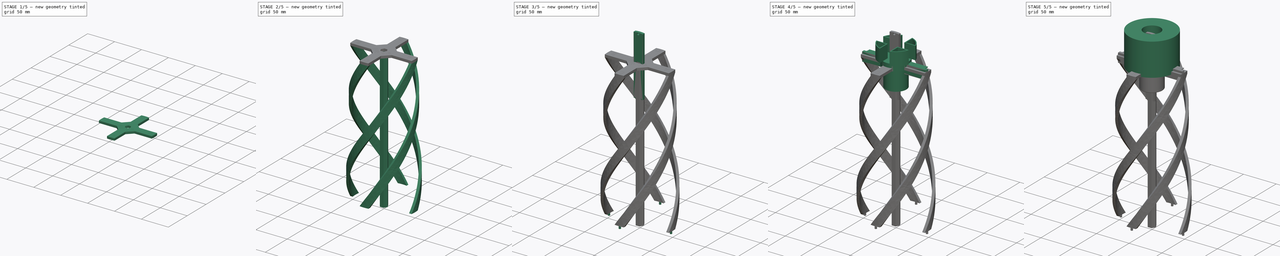
[diagram: build sequence overview — one tinted view per stage of 5, left to right]
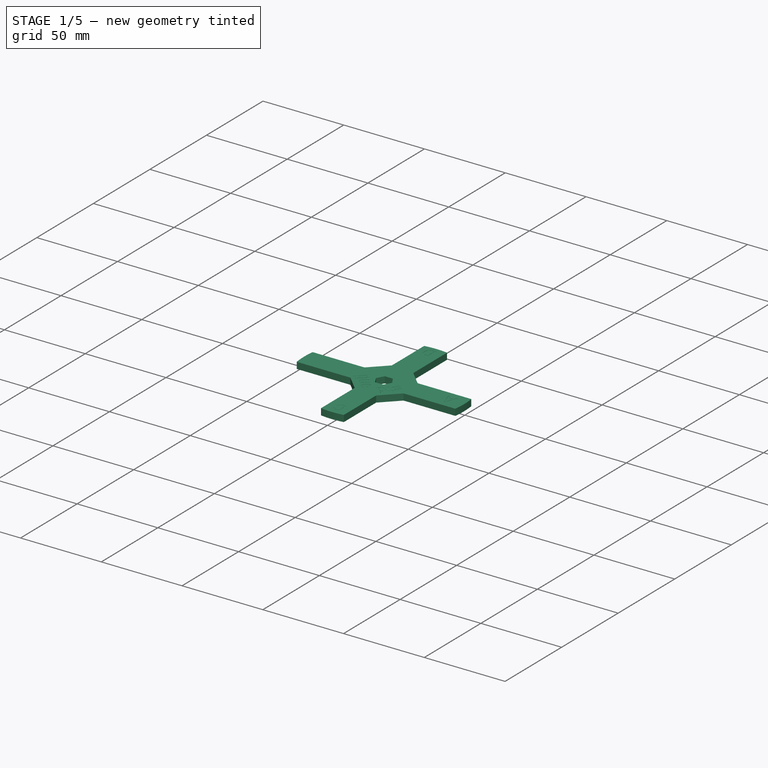
[diagram: stage 1 of 5 — iso view after this stage's code; geometry added in this stage tinted green]
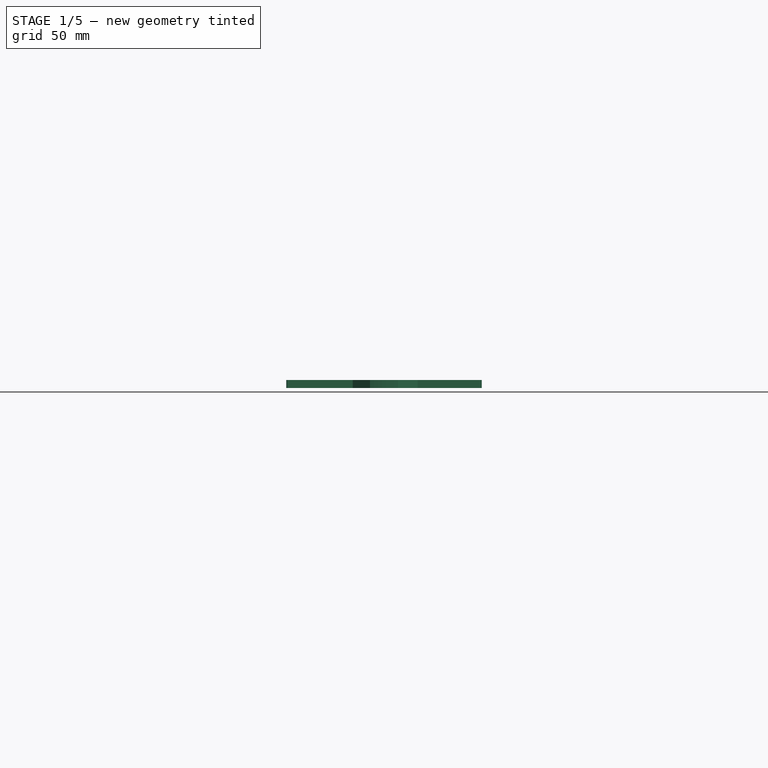
[diagram: stage 1 of 5 — front view after this stage's code; geometry added in this stage tinted green]
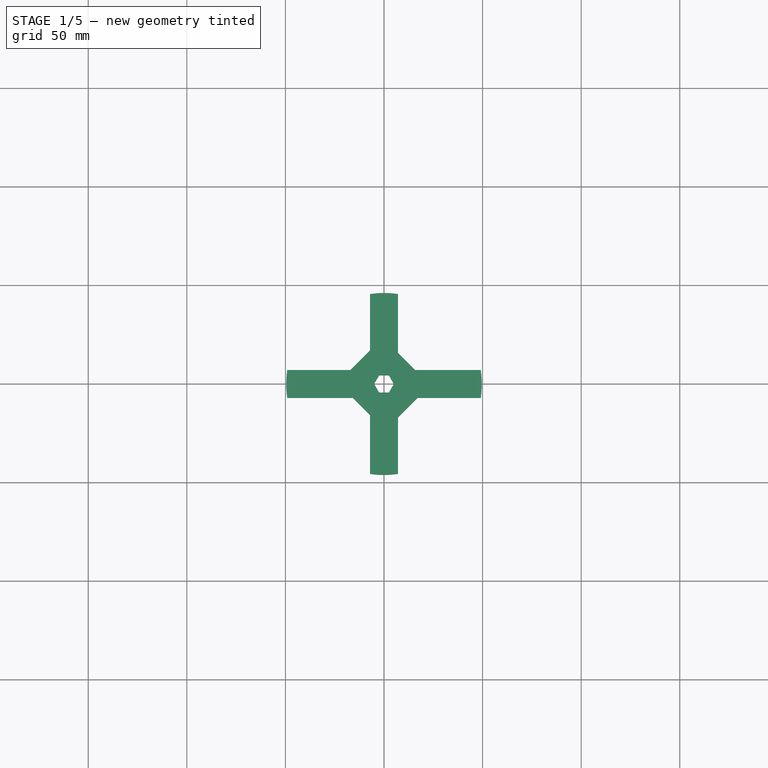
[diagram: stage 1 of 5 — top view after this stage's code; geometry added in this stage tinted green]
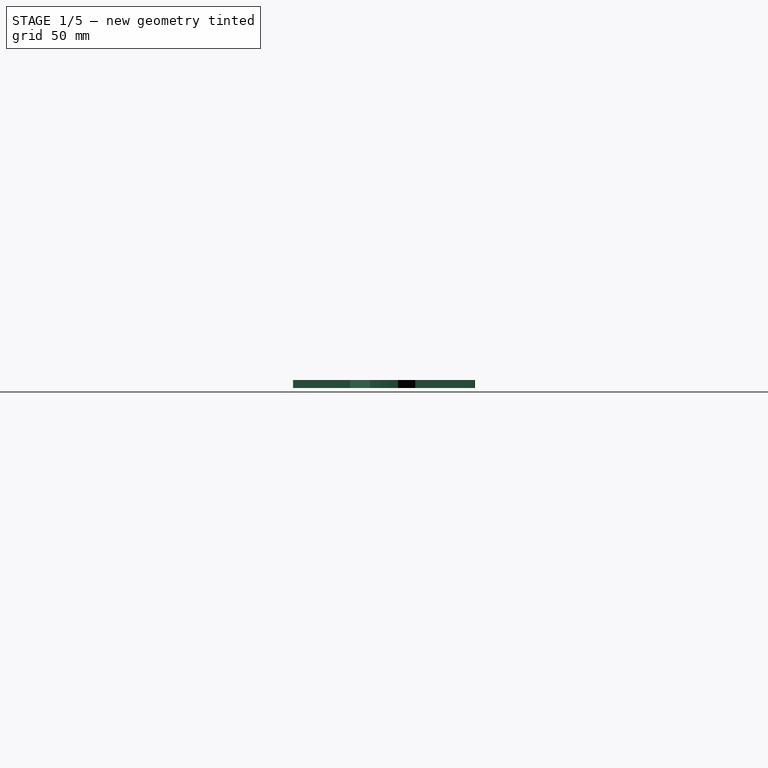
[diagram: stage 1 of 5 — right view after this stage's code; geometry added in this stage tinted green]
FCSTD DOCUMENT  (FreeCAD 0.21R33771 (Git))
Label: QfhAntenna
License: All rights reserved
LicenseURL: http://en.wikipedia.org/wiki/All_rights_reserved
objects: Sketcher::SketchObject×26, PartDesign::Pad×19, PartDesign::Pocket×11, Part::Part2DObjectPython×8, PartDesign::Body×5, PartDesign::CoordinateSystem×4, PartDesign::AdditiveHelix×4, PartDesign::Fillet×3, PartDesign::Chamfer×3, Spreadsheet::Sheet×2, App::DocumentObjectGroup×2, PartDesign::PolarPattern×1
note: 124 computed .brp shape members not serialized (recipe doc carries the construction recipe); baked Part::Feature solids carry a one-line shape summary decoded from their .brp

FEATURE [PartDesign::Body] Body008  label="Fork"
  Group = -> [Sketch014,Sketch015,Pad010,Pad011,PolarPattern,Sketch017,Fillet,LCS_7,Pad020,Chamfer,Fillet001,Chamfer001,Sketch036,Pocket004]
  Origin = -> Origin008
  Placement = pos=(0,-98.4,2.2e-14) rot=(-1,0,0;1.5708rad)
  Tip = -> Pocket004
FEATURE [App::DocumentObjectGroup] Group002  label="Support"
  Group = -> [Body008,Spreadsheet001,Body010]
FEATURE [PartDesign::CoordinateSystem] LCS_2
  AttacherType = Attacher::AttachEngine3D
FEATURE [Sketcher::SketchObject] Sketch035
  FullyConstrained = true
  MapMode = 5
  Support = -> [XY_Plane003]
  expr: Constraints[38] = Spreadsheet.D1Large
  expr: Constraints[40] = Spreadsheet.D2Small
  expr: Constraints[47] = 5
  expr: Constraints[48] = Spreadsheet.widthFoil * sqrt(2)
  expr: Constraints[49] = Spreadsheet.widthFoil * sqrt(2)
  expr: Constraints[82] = Spreadsheet.D2Small - Spreadsheet.helixThickness
  expr: Constraints[83] = Spreadsheet.D1Large - Spreadsheet.helixThickness
  expr: Constraints[85] = Spreadsheet.widthFoil / 2
  expr: Constraints[86] = Spreadsheet.widthFoil / 2
  expr: Constraints[87] = Spreadsheet.widthFoil * sqrt(2)
  expr: Constraints[88] = Spreadsheet.D2Small / 2
  expr: Constraints[89] = Spreadsheet.D1Large / 2
  sketch-geometry (43):
    g0: LineSegment StartX=2.5 StartY=-4.33013 StartZ=0 EndX=5 EndY=-7e-16 EndZ=0
    g1: LineSegment StartX=5 StartY=-7e-16 StartZ=0 EndX=2.5 EndY=4.33013 EndZ=0
    g2: LineSegment StartX=2.5 StartY=4.33013 StartZ=0 EndX=-2.5 EndY=4.33013 EndZ=0
    g3: LineSegment StartX=-2.5 StartY=4.33013 StartZ=0 EndX=-5 EndY=-2e-16 EndZ=0
    g4: LineSegment StartX=-5 StartY=-2e-16 StartZ=0 EndX=-2.5 EndY=-4.33013 EndZ=0
    g5: LineSegment StartX=-2.5 StartY=-4.33013 StartZ=0 EndX=2.5 EndY=-4.33013 EndZ=0
    g6: Circle CenterX=0 CenterY=0 CenterZ=0 NormalX=0 NormalY=0 NormalZ=1 AngleXU=0 Radius=5
    g7: ArcOfCircle CenterX=2.1e-15 CenterY=0 CenterZ=0 NormalX=0 NormalY=0 NormalZ=1 AngleXU=0 Radius=49.6 StartAngle=2.99854 EndAngle=3.28464
    g8: ArcOfCircle CenterX=0 CenterY=0 CenterZ=0 NormalX=0 NormalY=0 NormalZ=1 AngleXU=0 Radius=49.6 StartAngle=6.14014 EndAngle=6.42623
    g9: ArcOfCircle CenterX=0 CenterY=0 CenterZ=0 NormalX=0 NormalY=0 NormalZ=1 AngleXU=0 Radius=46.15 StartAngle=1.41697 EndAngle=1.72462
    g10: ArcOfCircle CenterX=0 CenterY=0 CenterZ=0 NormalX=0 NormalY=0 NormalZ=1 AngleXU=0 Radius=46.15 StartAngle=4.55856 EndAngle=4.86622
    g11: LineSegment StartX=-7.07102 StartY=45.6051 StartZ=0 EndX=-7.07102 EndY=7.07107 EndZ=0
    g12: LineSegment StartX=-49.0934 StartY=7.07107 StartZ=0 EndX=-7.07102 EndY=7.07107 EndZ=0
    g13: LineSegment StartX=7.07112 StartY=45.6051 StartZ=0 EndX=7.07112 EndY=7.07107 EndZ=0
    g14: LineSegment StartX=49.0934 StartY=7.07107 StartZ=0 EndX=7.07112 EndY=7.07107 EndZ=0
    g15: LineSegment StartX=-49.0934 StartY=-7.07107 StartZ=0 EndX=-7.07102 EndY=-7.07107 EndZ=0
    g16: LineSegment StartX=-7.07102 StartY=-7.07107 StartZ=0 EndX=-7.07102 EndY=-45.6051 EndZ=0
    g17: LineSegment StartX=7.07112 StartY=-45.6051 StartZ=0 EndX=7.07112 EndY=-7.07107 EndZ=0
    g18: LineSegment StartX=7.07112 StartY=-7.07107 StartZ=0 EndX=49.0934 EndY=-7.07107 EndZ=0
    g19: ArcOfCircle CenterX=-47.6 CenterY=2.5 CenterZ=0 NormalX=0 NormalY=0 NormalZ=1 AngleXU=0 Radius=1 StartAngle=1e-16 EndAngle=3.14159
    g20: ArcOfCircle CenterX=-47.6 CenterY=-2.5 CenterZ=0 NormalX=0 NormalY=0 NormalZ=1 AngleXU=0 Radius=1 StartAngle=3.14159 EndAngle=6.28319
    g21: LineSegment StartX=-48.6 StartY=2.5 StartZ=0 EndX=-48.6 EndY=-2.5 EndZ=0
    g22: LineSegment StartX=-46.6 StartY=-2.5 StartZ=0 EndX=-46.6 EndY=2.5 EndZ=0
    g23: ArcOfCircle CenterX=47.6 CenterY=2.5 CenterZ=0 NormalX=0 NormalY=0 NormalZ=1 AngleXU=0 Radius=1 StartAngle=1e-16 EndAngle=3.14159
    g24: ArcOfCircle CenterX=47.6 CenterY=-2.5 CenterZ=0 NormalX=0 NormalY=0 NormalZ=1 AngleXU=0 Radius=1 StartAngle=3.14159 EndAngle=6.28319
    g25: LineSegment StartX=46.6 StartY=2.5 StartZ=0 EndX=46.6 EndY=-2.5 EndZ=0
    g26: LineSegment StartX=48.6 StartY=-2.5 StartZ=0 EndX=48.6 EndY=2.5 EndZ=0
    g27: ArcOfCircle CenterX=-2.5 CenterY=-44.15 CenterZ=0 NormalX=0 NormalY=0 NormalZ=1 AngleXU=0 Radius=1 StartAngle=1.5708 EndAngle=4.71239
    g28: ArcOfCircle CenterX=2.5 CenterY=-44.15 CenterZ=0 NormalX=0 NormalY=0 NormalZ=1 AngleXU=0 Radius=1 StartAngle=4.71239 EndAngle=7.85398
    g29: LineSegment StartX=-2.5 StartY=-45.15 StartZ=0 EndX=2.5 EndY=-45.15 EndZ=0
    g30: LineSegment StartX=2.5 StartY=-43.15 StartZ=0 EndX=-2.5 EndY=-43.15 EndZ=0
    g31: ArcOfCircle CenterX=-2.5 CenterY=44.15 CenterZ=0 NormalX=0 NormalY=0 NormalZ=1 AngleXU=0 Radius=1 StartAngle=1.5708 EndAngle=4.71239
    g32: ArcOfCircle CenterX=2.5 CenterY=44.15 CenterZ=0 NormalX=0 NormalY=0 NormalZ=1 AngleXU=0 Radius=1 StartAngle=4.71239 EndAngle=7.85398
    g33: LineSegment StartX=-2.5 StartY=43.15 StartZ=0 EndX=2.5 EndY=43.15 EndZ=0
    g34: LineSegment StartX=2.5 StartY=45.15 StartZ=0 EndX=-2.5 EndY=45.15 EndZ=0
    g35: LineSegment StartX=-15.8392 StartY=-7.07107 StartZ=0 EndX=-7.07102 EndY=-15.8392 EndZ=0
    g36: LineSegment StartX=7.07112 StartY=15.8391 StartZ=0 EndX=15.8392 EndY=7.07107 EndZ=0
    g37: LineSegment StartX=2.1e-15 StartY=0 StartZ=0 EndX=11.4551 EndY=11.4551 EndZ=0
    g38: LineSegment StartX=2.1e-15 StartY=0 StartZ=0 EndX=-11.4551 EndY=-11.4551 EndZ=0
    g39: LineSegment StartX=-49.0934 StartY=-7.07107 StartZ=0 EndX=-15.8392 EndY=-7.07107 EndZ=0
    g40: LineSegment StartX=7.07112 StartY=45.6051 StartZ=0 EndX=7.07112 EndY=15.8391 EndZ=0
    g41: LineSegment StartX=15.8392 StartY=7.07107 StartZ=0 EndX=49.0934 EndY=7.07107 EndZ=0
    g42: LineSegment StartX=-7.07102 StartY=-15.8392 StartZ=0 EndX=-7.07102 EndY=-45.6051 EndZ=0
  constraints (108):
    c: Coincident(g0,g1)
    c: Coincident(g1,g2)
    c: Coincident(g2,g3)
    c: Coincident(g3,g4)
    c: Coincident(g4,g5)
    c: Coincident(g5,g0)
    c: Equal(g0, g1-g5) x5
    c: PointOnObject(g0,g6)
    c: PointOnObject(g1,g6)
    c: PointOnObject(g2,g6)
    c: PointOnObject(g3,g6)
    c: PointOnObject(g4,g6)
    c: PointOnObject(g5,g6)
    c: Coincident(g6,g-1)
    c: PointOnObject(g7,g-1)
    c: Coincident(g8,g6)
    c: Coincident(g9,g8)
    c: Coincident(g10,g8)
    c: Coincident(g11,g9)
    c: Vertical(g11)
    c: Coincident(g12,g7)
    c: Coincident(g12,g11)
    c: Horizontal(g12)
    c: Coincident(g13,g9)
    c: Vertical(g13)
    c: Coincident(g14,g8)
    c: Coincident(g14,g13)
    c: Coincident(g15,g7)
    c: Coincident(g16,g15)
    c: Coincident(g16,g10)
    c: Coincident(g17,g10)
    c: Vertical(g17)
    c: Coincident(g18,g17)
    c: Coincident(g18,g8)
    c: Distance(g7,g8) = 99.2
    c: Symmetric(g7,g8,g-2)
    c: Distance(g9,g10) = 92.3
    c: Perpendicular(g16,g15)
    c: Perpendicular(g18,g17)
    c: Perpendicular(g13,g14)
    c: Horizontal(g15,g17)
    c: Symmetric(g11,g15,g-1)
    c: Horizontal(g2)
    c: Radius(g6) = 5
    c: DistanceY(g7,g7) = 14.1421
    c: DistanceX(g9,g9) = 14.1421
    c: Symmetric(g9,g10,g-1)
    c: Tangent(g19,g21) = -1.5708
    c: Tangent(g21,g20) = -1.5708
    c: Tangent(g20,g22) = -1.5708
    c: Tangent(g22,g19) = -1.5708
    c: Tangent(g23,g25) = -1.5708
    c: Tangent(g25,g24) = -1.5708
    c: Tangent(g24,g26) = -1.5708
    c: Tangent(g26,g23) = -1.5708
    c: Equal(g23,g24)
    c: Tangent(g27,g29) = -1.5708
    c: Tangent(g29,g28) = -1.5708
    c: Tangent(g28,g30) = -1.5708
    c: Tangent(g30,g27) = -1.5708
    c: Equal(g27,g28)
    c: Vertical(g24,g23)
    c: Symmetric(g28,g27,g-2)
    c: Tangent(g31,g33) = -1.5708
    c: Tangent(g33,g32) = -1.5708
    c: Tangent(g32,g34) = -1.5708
    c: Tangent(g34,g31) = -1.5708
    c: Equal(g31,g32)
    c: Horizontal(g33)
    c: Vertical(g31,g27)
    c: Horizontal(g20,g24)
    c: Symmetric(g19,g20,g-1)
    c: Equal(g20,g27)
    c: Equal(g20,g31)
    c: Equal(g20,g24)
    c: Radius(g20) = 1
    c: Symmetric(g19,g23,g-2)
    c: Symmetric(g28,g32,g-1)
    c: DistanceY(g28,g32) = 88.3
    c: DistanceX(g19,g23) = 95.2
    c: Equal(g19,g32)
    c: DistanceY(g24,g23) = 5
    c: DistanceX(g27,g28) = 5
    c: DistanceX(g10,g10) = 14.1421
    c: Radius(g10) = 46.15
    c: Radius(g7) = 49.6
    c: PointOnObject(g35,g15)
    c: PointOnObject(g35,g16)
    c: PointOnObject(g36,g13)
    c: PointOnObject(g36,g14)
    c: Parallel(g35,g36)
    c: Angle(g35) = -0.785398
    c: Coincident(g37,g7)
    c: PointOnObject(g37,g36)
    c: Coincident(g38,g7)
    c: PointOnObject(g38,g35)
    c: Perpendicular(g36,g37)
    c: Perpendicular(g35,g38)
    c: Distance(g37) = 16.2
    c: Distance(g38) = 16.2
    c: Coincident(g39,g7)
    c: Coincident(g39,g35)
    c: Coincident(g40,g9)
    c: Coincident(g40,g36)
    c: Coincident(g41,g36)
    c: Coincident(g41,g8)
    c: Coincident(g42,g35)
    c: Coincident(g42,g10)
FEATURE [PartDesign::Pad] Pad027
  Direction = (0,0,1)
  Length = 4
  Length2 = 10
  Profile = -> Sketch035
  ReferenceAxis = -> Sketch035 [N_Axis]
  Type = 0
  expr: Length = Spreadsheet.helixThickness
FEATURE [PartDesign::Body] Body006  label="SmallBase"
  Group = -> [Sketch005,LCS_4,Pad034,Sketch045,Pad035]
  Origin = -> Origin006
  Placement = pos=(-0.764251,7.2,0) rot=(0,0,1;3.14159rad)
  Tip = -> Pad035
  expr: .Placement.Base.y = Spreadsheet.heightSmall
FEATURE [PartDesign::Chamfer] Chamfer004
  Angle = 45
  Base = -> Pad027 [Edge5,Edge26]
  BaseFeature = -> Pad027
  ChamferType = 0
  FlipDirection = false
  Size = 10
  Size2 = 1
  SupportTransform = false
  UseAllEdges = false
FEATURE [Part::Part2DObjectPython] ShapeString  label="A"  # Draft 2D object (typed FeaturePython)
  FontFile = <userpath>/Library/Fonts/DINMittelschriftStd.otf
  MakeFace = true
  Placement = pos=(43.5316,3.39223,4) rot=(0,0,1;3.11792rad)
  Size = 4
  String = A
  Tracking = 0
  expr: .Placement.Base.z = Spreadsheet.helixThickness
FEATURE [Part::Part2DObjectPython] ShapeString001  label="B"  # Draft 2D object (typed FeaturePython)
  FontFile = <userpath>/Library/Fonts/DINMittelschriftStd.otf
  MakeFace = true
  Placement = pos=(-36.8456,3.64199,4) rot=(0,0,1;3.11792rad)
  Size = 4
  String = B
  Tracking = 0
  expr: .Placement.Base.z = Spreadsheet.helixThickness
FEATURE [Part::Part2DObjectPython] ShapeString002  label="C"  # Draft 2D object (typed FeaturePython)
  FontFile = <userpath>/Library/Fonts/DINMittelschriftStd.otf
  MakeFace = true
  Placement = pos=(3.40399,-36.3492,4) rot=(0,0,1;3.11792rad)
  Size = 4
  String = C
  Tracking = 0
  expr: .Placement.Base.z = Spreadsheet.helixThickness
FEATURE [Part::Part2DObjectPython] ShapeString003  label="D"  # Draft 2D object (typed FeaturePython)
  FontFile = <userpath>/Library/Fonts/DINMittelschriftStd.otf
  MakeFace = true
  Placement = pos=(3.04927,43.4959,4) rot=(0,0,1;3.11792rad)
  Size = 4
  String = D
  Tracking = 0
  expr: .Placement.Base.z = Spreadsheet.helixThickness
FEATURE [Part::Part2DObjectPython] ShapeString004  label="Standard"  # Draft 2D object (typed FeaturePython)
  FontFile = <userpath>/Library/Fonts/DINMittelschriftStd.otf
  MakeFace = true
  Placement = pos=(10.8785,-0.540177,4) rot=(0,0,1;3.92265rad)
  Size = 4
  String = std
  Tracking = 0
  expr: .Placement.Base.z = Spreadsheet.helixThickness
FEATURE [Part::Part2DObjectPython] ShapeString005  label="Anti"  # Draft 2D object (typed FeaturePython)
  FontFile = <userpath>/Library/Fonts/DINMittelschriftStd.otf
  MakeFace = true
  Placement = pos=(-0.241636,-10.8416,4) rot=(0,0,1;2.30983rad)
  Size = 4
  String = anti
  Tracking = 0
  expr: .Placement.Base.z = Spreadsheet.helixThickness
FEATURE [Part::Part2DObjectPython] ShapeString007  label="Standard001"  # Draft 2D object (typed FeaturePython)
  FontFile = <userpath>/Library/Fonts/DINMittelschriftStd.otf
  MakeFace = true
  Placement = pos=(10.8785,-0.540177,4) rot=(0,0,1;3.92265rad)
  Size = 4
  String = std
  Tracking = 0
  expr: .Placement.Base.z = Spreadsheet.helixThickness
FEATURE [PartDesign::Pocket] Pocket010
  BaseFeature = -> Chamfer004
  Direction = (0,0,-1)
  Length = 0.1
  Length2 = 5
  Profile = -> ShapeString007
  ReferenceAxis = -> ShapeString007 [N_Axis]
  Type = 0
FEATURE [PartDesign::Pocket] Pocket009
  BaseFeature = -> Pocket010
  Direction = (0,0,-1)
  Length = 0.1
  Length2 = 5
  Profile = -> ShapeString005
  ReferenceAxis = -> ShapeString005 [N_Axis]
  Type = 0
FEATURE [PartDesign::Pocket] Pocket008
  BaseFeature = -> Pocket009
  Direction = (0,0,-1)
  Length = 0.1
  Length2 = 5
  Profile = -> ShapeString
  ReferenceAxis = -> ShapeString [N_Axis]
  Type = 0
FEATURE [PartDesign::Pocket] Pocket007
  BaseFeature = -> Pocket008
  Direction = (0,0,-1)
  Length = 0.1
  Length2 = 5
  Profile = -> ShapeString004
  ReferenceAxis = -> ShapeString004 [N_Axis]
  Type = 0
FEATURE [PartDesign::Pocket] Pocket006
  BaseFeature = -> Pocket007
  Direction = (0,0,-1)
  Length = 0.1
  Length2 = 5
  Profile = -> ShapeString002
  ReferenceAxis = -> ShapeString002 [N_Axis]
  Type = 0
FEATURE [PartDesign::Pocket] Pocket
  BaseFeature = -> Pocket006
  Direction = (0,0,-1)
  Length = 0.1
  Length2 = 5
  Profile = -> ShapeString003
  ReferenceAxis = -> ShapeString003 [N_Axis]
  Type = 0
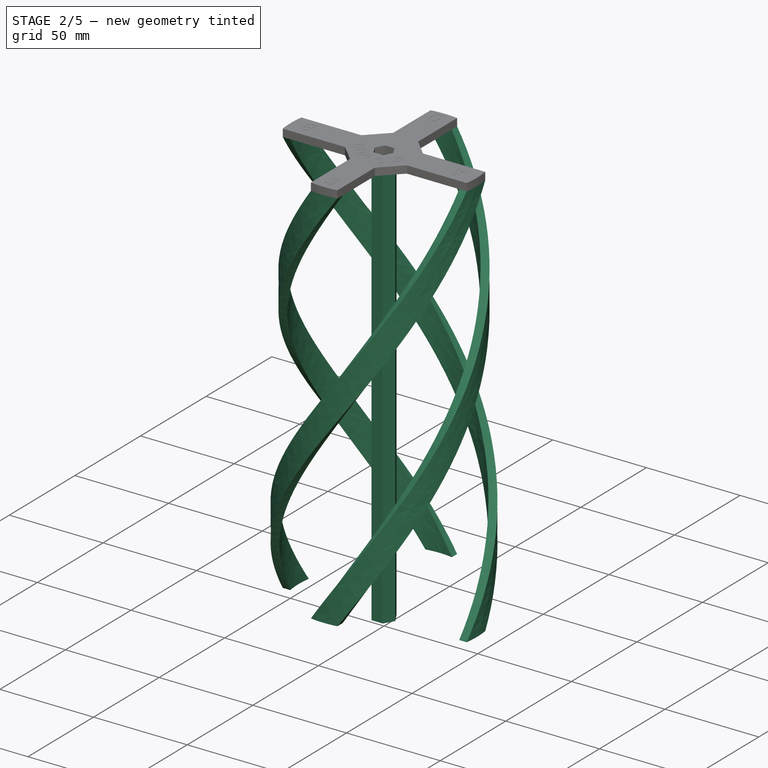
[diagram: stage 2 of 5 — iso view after this stage's code; geometry added in this stage tinted green]
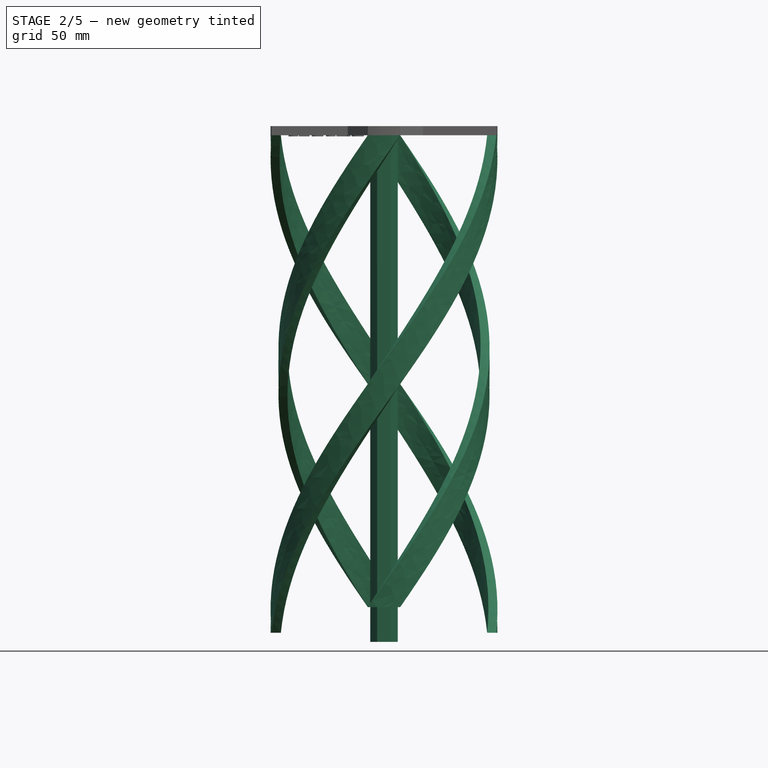
[diagram: stage 2 of 5 — front view after this stage's code; geometry added in this stage tinted green]
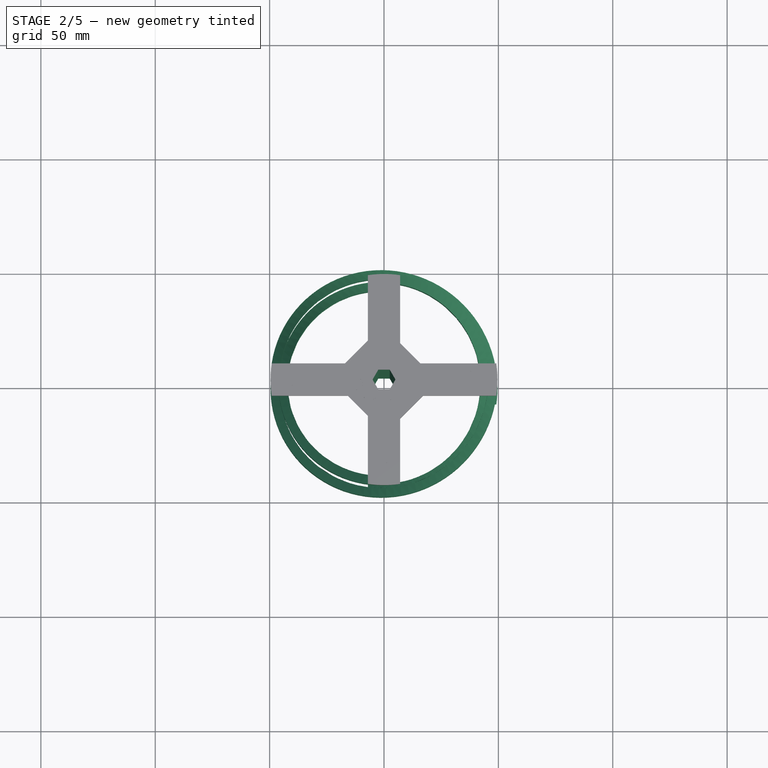
[diagram: stage 2 of 5 — top view after this stage's code; geometry added in this stage tinted green]
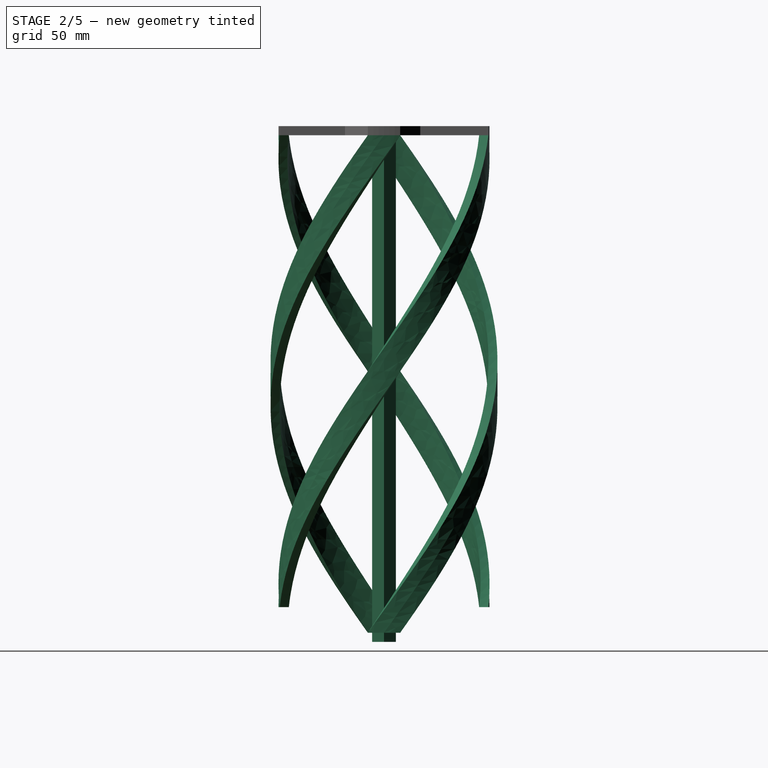
[diagram: stage 2 of 5 — right view after this stage's code; geometry added in this stage tinted green]
FEATURE [Part::Part2DObjectPython] ShapeString008  label="SA0PEJ"  # Draft 2D object (typed FeaturePython)
  FontFile = <userpath>/Library/Fonts/DINMittelschriftStd.otf
  MakeFace = true
  Placement = pos=(-8.68221,-4.04907,0) rot=(0,1,0;3.14159rad)
  Size = 4
  String = SA0PEJ
  Tracking = 0
FEATURE [PartDesign::Pad] Pad
  BaseFeature = -> Pocket
  Direction = (0,0,-1)
  Length = 0.5
  Length2 = 10
  Profile = -> ShapeString008
  ReferenceAxis = -> ShapeString008 [N_Axis]
  Type = 0
FEATURE [PartDesign::Pocket] Pocket005
  BaseFeature = -> Pad
  Direction = (0,0,-1)
  Length = 0.1
  Length2 = 5
  Profile = -> ShapeString001
  ReferenceAxis = -> ShapeString001 [N_Axis]
  Type = 0
FEATURE [PartDesign::Fillet] Fillet002
  Base = -> Pocket005
  BaseFeature = -> Pocket005
  Radius = 1
  SupportTransform = false
  UseAllEdges = false
FEATURE [PartDesign::AdditiveHelix] AdditiveHelix003  label="SmallHelixB"
  Angle = 0
  Axis = (1e-16,1e-16,1)
  Base = (0,0,0)
  BaseFeature = -> Fillet002
  Growth = 0
  HasBeenEdited = true
  Height = 206.3
  LeftHanded = false
  Mode = 2
  Outside = false
  Pitch = 412.6
  Profile = -> Sketch038
  ReferenceAxis = -> Z_Axis003
  Reversed = true
  Turns = 0.5
  expr: Height = Spreadsheet.H2Small - 2 * Spreadsheet.helixThickness
FEATURE [PartDesign::AdditiveHelix] AdditiveHelix004  label="LargeHelixB"
  Angle = 0
  Axis = (1e-16,1e-16,1)
  Base = (0,0,0)
  BaseFeature = -> AdditiveHelix003
  Growth = 0
  HasBeenEdited = true
  Height = 217.5
  LeftHanded = false
  Mode = 2
  Outside = false
  Pitch = 435
  Profile = -> Sketch039
  ReferenceAxis = -> Z_Axis003
  Reversed = true
  Turns = 0.5
  expr: Height = Spreadsheet.H1Large - 2 * Spreadsheet.helixThickness
FEATURE [PartDesign::Pad] Pad032
  BaseFeature = -> AdditiveHelix004
  Direction = (0,0,-1)
  Length = 221.5
  Length2 = 10
  Profile = -> Sketch044
  ReferenceAxis = -> Sketch044 [N_Axis]
  Type = 0
  expr: Length = Spreadsheet.H1Large - Spreadsheet.helixThickness
FEATURE [Sketcher::SketchObject] Sketch
  ExternalGeometry = -> [Pad032]
  FullyConstrained = true
  MapMode = 5
  Placement = pos=(0,0,0) rot=(1,0,0;3.14159rad)
  Support = -> [Pad032]
  expr: Constraints[5] = Spreadsheet.helixThickness
  sketch-geometry (4):
    g0: ArcOfCircle CenterX=0 CenterY=0 CenterZ=0 NormalX=0 NormalY=0 NormalZ=1 AngleXU=0 Radius=49.6 StartAngle=6.14014 EndAngle=6.42623
    g1: ArcOfCircle CenterX=0 CenterY=0 CenterZ=0 NormalX=0 NormalY=0 NormalZ=1 AngleXU=0 Radius=45.6444 StartAngle=6.12764 EndAngle=6.43873
    g2: LineSegment StartX=45.0934 StartY=7.07107 StartZ=0 EndX=49.0934 EndY=7.07107 EndZ=0
    g3: LineSegment StartX=45.0934 StartY=-7.07107 StartZ=0 EndX=49.0934 EndY=-7.07107 EndZ=0
  constraints (12):
    c: Coincident(g0,g-3)
    c: Coincident(g0,g-3)
    c: Coincident(g1,g0)
    c: Horizontal(g1,g0)
    c: Horizontal(g1,g0)
    c: DistanceX(g1,g0) = 4
    c: Coincident(g2,g1)
    c: Coincident(g2,g0)
    c: Coincident(g3,g1)
    c: Horizontal(g3)
    c: Horizontal(g1,g-3)
    c: Vertical(g3,g0)
FEATURE [PartDesign::AdditiveHelix] AdditiveHelix  label="LargeHelixA"
  Angle = 0
  Axis = (1e-16,1e-16,1)
  Base = (0,0,0)
  BaseFeature = -> Pad032
  Growth = 0
  HasBeenEdited = true
  Height = 217.5
  LeftHanded = false
  Mode = 2
  Outside = false
  Pitch = 435
  Profile = -> Sketch
  ReferenceAxis = -> Z_Axis003
  Reversed = true
  Turns = 0.5
  expr: Height = Spreadsheet.H1Large - 2 * Spreadsheet.helixThickness
FEATURE [Sketcher::SketchObject] Sketch046
  ExternalGeometry = -> [AdditiveHelix]
  FullyConstrained = true
  MapMode = 5
  Placement = pos=(0,0,0) rot=(1,0,0;3.14159rad)
  Support = -> [AdditiveHelix]
  expr: Constraints[9] = Spreadsheet.helixThickness
  sketch-geometry (4):
    g0: ArcOfCircle CenterX=0 CenterY=0 CenterZ=0 NormalX=0 NormalY=0 NormalZ=1 AngleXU=0 Radius=46.15 StartAngle=4.55856 EndAngle=4.86622
    g1: ArcOfCircle CenterX=0 CenterY=0 CenterZ=0 NormalX=0 NormalY=0 NormalZ=1 AngleXU=0 Radius=42.2017 StartAngle=4.54404 EndAngle=4.88074
    g2: LineSegment StartX=-7.07102 StartY=-41.6051 StartZ=0 EndX=-7.07102 EndY=-45.6051 EndZ=0
    g3: LineSegment StartX=7.07112 StartY=-41.6051 StartZ=0 EndX=7.07112 EndY=-45.6051 EndZ=0
  constraints (11):
    c: Coincident(g0,g-3)
    c: Coincident(g0,g-3)
    c: Coincident(g1,g0)
    c: Vertical(g0,g1)
    c: Vertical(g0,g1)
    c: Coincident(g2,g1)
    c: Coincident(g2,g0)
    c: Coincident(g3,g1)
    c: Coincident(g3,g0)
    c: DistanceY(g3,g3) = 4
    c: Vertical(g-3,g0)
FEATURE [PartDesign::AdditiveHelix] AdditiveHelix005  label="SmallHelixA"
  Angle = 0
  Axis = (1e-16,1e-16,1)
  Base = (0,0,0)
  BaseFeature = -> AdditiveHelix
  Growth = 0
  HasBeenEdited = true
  Height = 210.3
  LeftHanded = false
  Mode = 2
  Outside = false
  Pitch = 420.6
  Profile = -> Sketch046
  ReferenceAxis = -> Z_Axis003
  Reversed = true
  Turns = 0.5
  expr: Height = Spreadsheet.H2Small - 2 * Spreadsheet.helixThickness
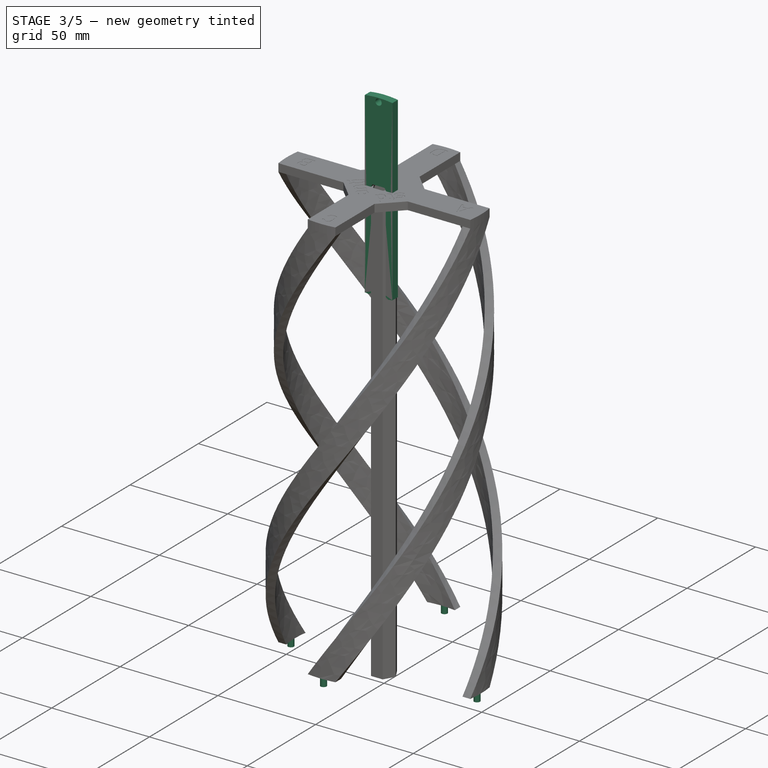
[diagram: stage 3 of 5 — iso view after this stage's code; geometry added in this stage tinted green]
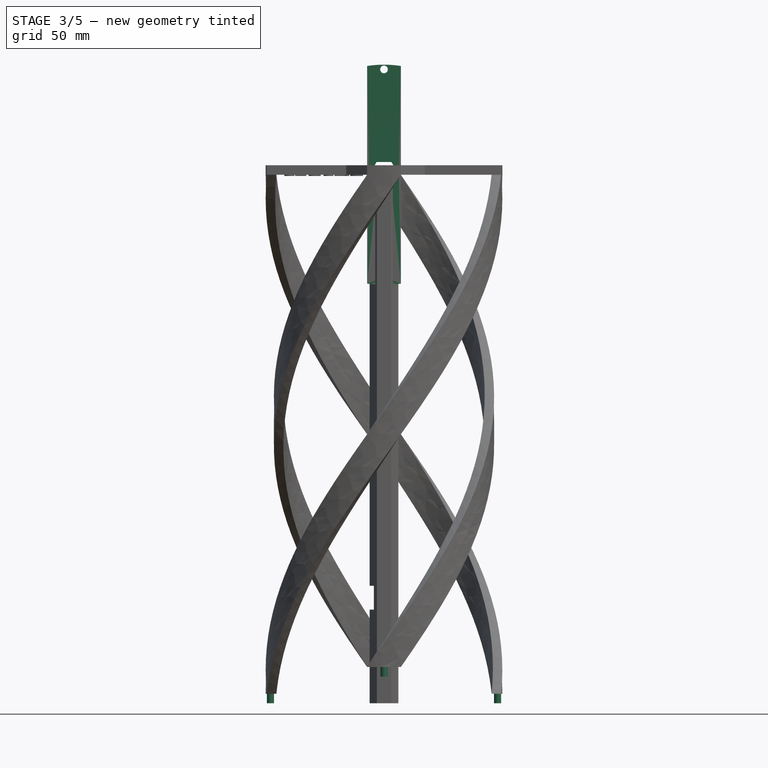
[diagram: stage 3 of 5 — front view after this stage's code; geometry added in this stage tinted green]
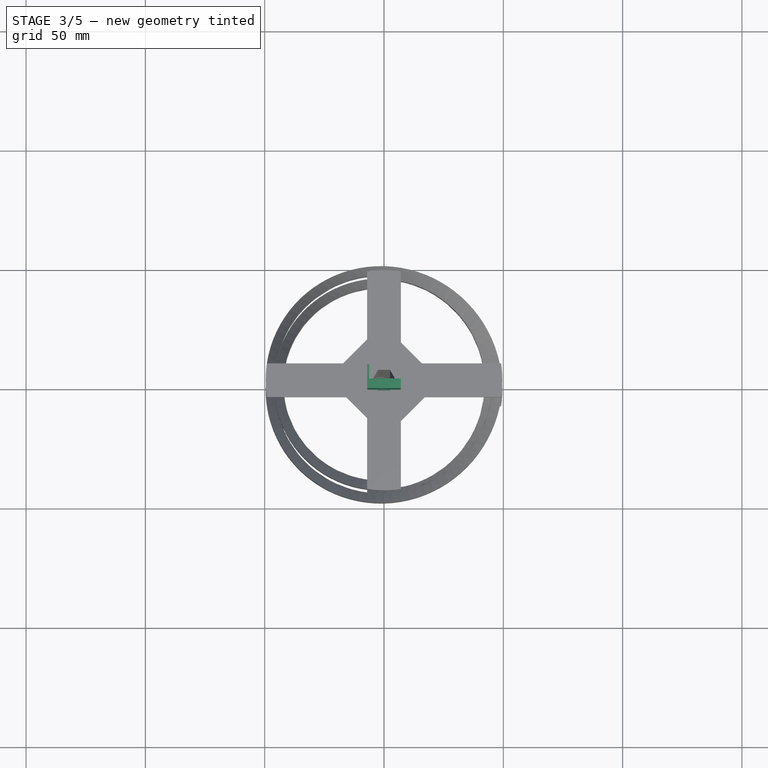
[diagram: stage 3 of 5 — top view after this stage's code; geometry added in this stage tinted green]
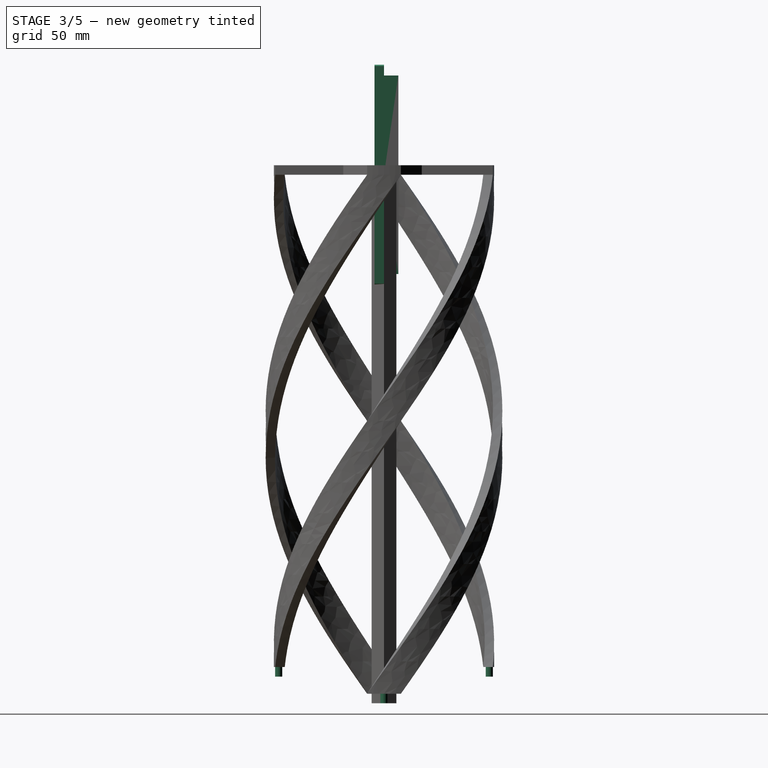
[diagram: stage 3 of 5 — right view after this stage's code; geometry added in this stage tinted green]
FEATURE [PartDesign::Body] Body002  label="LargeBase"
  Group = -> [Sketch003,Pad003,LCS_1,Sketch028,Sketch033,Pad026,Pad033]
  Origin = -> Origin002
  Placement = pos=(3e-15,-75.8,0) rot=(0,0,1;3.14159rad)
  Tip = -> Pad033
FEATURE [PartDesign::Pad] Pad034
  Direction = (0,-1,-2e-16)
  Length = 4
  Length2 = 10
  Placement = pos=(0,0,0) rot=(1,0,0;1.5708rad)
  Profile = -> Sketch005
  ReferenceAxis = -> Sketch005 [N_Axis]
  Type = 0
  expr: Length = Spreadsheet.helixThickness
FEATURE [Sketcher::SketchObject] Sketch045
  ExternalGeometry = -> [Pad034]
  FullyConstrained = true
  MapMode = 5
  Placement = pos=(0,0,0) rot=(-1,0,0;1.5708rad)
  Support = -> [Pad034]
  expr: Constraints[10] = Spreadsheet.helixThickness
  expr: Constraints[11] = Spreadsheet.helixThickness
  sketch-geometry (4):
    g0: LineSegment StartX=-7.07107 StartY=41.6051 StartZ=0 EndX=-6.2 EndY=41.6051 EndZ=0
    g1: LineSegment StartX=-6.2 StartY=41.6051 StartZ=0 EndX=-6.2 EndY=-41.6051 EndZ=0
    g2: LineSegment StartX=-6.2 StartY=-41.6051 StartZ=0 EndX=-7.07107 EndY=-41.6051 EndZ=0
    g3: LineSegment StartX=-7.07107 StartY=-41.6051 StartZ=0 EndX=-7.07107 EndY=41.6051 EndZ=0
  constraints (12):
    c: Coincident(g0,g1)
    c: Coincident(g1,g2)
    c: Coincident(g2,g3)
    c: Coincident(g3,g0)
    c: Horizontal(g0)
    c: Horizontal(g2)
    c: Vertical(g1)
    c: Vertical(g3)
    c: PointOnObject(g0,g-4)
    c: PointOnObject(g-3,g1)
    c: DistanceY(g0,g-4) = 4
    c: DistanceY(g-4,g2) = 4
FEATURE [PartDesign::Pad] Pad035
  BaseFeature = -> Pad034
  Direction = (0,1,2e-16)
  Length = 6
  Length2 = 10
  Placement = pos=(0,0,0) rot=(1,0,0;1.5708rad)
  Profile = -> Sketch045
  ReferenceAxis = -> Sketch045 [N_Axis]
  Type = 0
  expr: Length = Spreadsheet.widthFoil - Spreadsheet.helixThickness
FEATURE [Sketcher::SketchObject] Sketch041
  FullyConstrained = true
  MapMode = 5
  Placement = pos=(0,0,8.2e-15) rot=(0,0,1;0rad)
  Support = -> [AdditiveHelix005]
  expr: Constraints[1] = Spreadsheet.helixThickness - 1
  expr: Constraints[2] = Spreadsheet.D2Small / 2 - Spreadsheet.helixThickness / 2
  sketch-geometry (1):
    g0: Circle CenterX=0 CenterY=-44.15 CenterZ=0 NormalX=0 NormalY=0 NormalZ=1 AngleXU=0 Radius=1.5
  constraints (3):
    c: PointOnObject(g0,g-2)
    c: Diameter(g0) = 3
    c: DistanceY(g0,g-1) = 44.15
FEATURE [PartDesign::Pad] Pad029
  BaseFeature = -> AdditiveHelix005
  Direction = (0,0,1)
  Length = 4
  Length2 = 10
  Profile = -> Sketch041
  ReferenceAxis = -> Sketch041 [N_Axis]
  Type = 0
  expr: Length = Spreadsheet.helixThickness
FEATURE [Sketcher::SketchObject] Sketch047
  FullyConstrained = true
  MapMode = 5
  Placement = pos=(0,0,0) rot=(1,0,0;3.14159rad)
  Support = -> [AdditiveHelix005]
  expr: Constraints[1] = Spreadsheet.D1Large / 2 - Spreadsheet.helixThickness / 2
  expr: Constraints[2] = Spreadsheet.helixThickness - 1
  sketch-geometry (1):
    g0: Circle CenterX=-47.6 CenterY=0 CenterZ=0 NormalX=0 NormalY=0 NormalZ=1 AngleXU=0 Radius=1.5
  constraints (3):
    c: PointOnObject(g0,g-1)
    c: DistanceX(g0,g-1) = 47.6
    c: Diameter(g0) = 3
FEATURE [PartDesign::Pad] Pad036
  BaseFeature = -> Pad029
  Direction = (0,0,-1)
  Length = 4
  Length2 = 10
  Profile = -> Sketch047
  ReferenceAxis = -> Sketch047 [N_Axis]
  Type = 0
  expr: Length = Spreadsheet.helixThickness
FEATURE [Sketcher::SketchObject] Sketch048
  FullyConstrained = true
  MapMode = 5
  Placement = pos=(3.05499e-08,-3.05475e-08,-210.3) rot=(1,0,0;3.14159rad)
  Support = -> [Pad036]
  expr: Constraints[1] = Spreadsheet.D2Small / 2 - Spreadsheet.helixThickness / 2
  expr: Constraints[2] = Spreadsheet.helixThickness - 1
  sketch-geometry (1):
    g0: Circle CenterX=0 CenterY=44.15 CenterZ=0 NormalX=0 NormalY=0 NormalZ=1 AngleXU=0 Radius=1.5
  constraints (3):
    c: PointOnObject(g0,g-2)
    c: DistanceY(g-1,g0) = 44.15
    c: Diameter(g0) = 3
FEATURE [PartDesign::Pad] Pad037
  BaseFeature = -> Pad036
  Direction = (1.45268e-10,-1.45257e-10,-1)
  Length = 4
  Length2 = 10
  Profile = -> Sketch048
  ReferenceAxis = -> Sketch048 [N_Axis]
  Type = 0
  expr: Length = Spreadsheet.helixThickness
FEATURE [Sketcher::SketchObject] Sketch050
  FullyConstrained = true
  MapMode = 5
  Placement = pos=(-4.5,2.59808,0) rot=(-0.377964,0.654654,0.654654;3.86433rad)
  Support = -> [Pad032]
  sketch-geometry (4):
    g0: LineSegment StartX=-5 StartY=-182.25 StartZ=0 EndX=5 EndY=-182.25 EndZ=0
    g1: LineSegment StartX=5 StartY=-182.25 StartZ=0 EndX=5 EndY=-172.25 EndZ=0
    g2: LineSegment StartX=5 StartY=-172.25 StartZ=0 EndX=-5 EndY=-172.25 EndZ=0
    g3: LineSegment StartX=-5 StartY=-172.25 StartZ=0 EndX=-5 EndY=-182.25 EndZ=0
  constraints (11):
    c: Coincident(g0,g1)
    c: Coincident(g1,g2)
    c: Coincident(g2,g3)
    c: Coincident(g3,g0)
    c: Horizontal(g2)
    c: Vertical(g1)
    c: Vertical(g3)
    c: Equal(g0,g1)
    c: DistanceY(g1,g-1) = 172.25
    c: DistanceX(g0,g0) = 10
    c: Symmetric(g0,g0,g-2)
FEATURE [PartDesign::Pocket] Pocket011
  BaseFeature = -> Pad037
  Direction = (0.866025,-0.5,-2e-16)
  Length = 3
  Length2 = 5
  Profile = -> Sketch050
  ReferenceAxis = -> Sketch050 [N_Axis]
  Type = 0
FEATURE [Sketcher::SketchObject] Sketch051
  FullyConstrained = true
  MapMode = 5
  Placement = pos=(-2.93935e-08,2.93912e-08,-206.3) rot=(1,0,0;3.14159rad)
  Support = -> [Pad037]
  expr: Constraints[1] = Spreadsheet.D2Small / 2 - Spreadsheet.helixThickness / 2
  expr: Constraints[2] = Spreadsheet.helixThickness - 1
  sketch-geometry (1):
    g0: Circle CenterX=0 CenterY=-44.15 CenterZ=0 NormalX=0 NormalY=0 NormalZ=1 AngleXU=0 Radius=1.5
  constraints (3):
    c: PointOnObject(g0,g-2)
    c: DistanceY(g0,g-1) = 44.15
    c: Diameter(g0) = 3
FEATURE [PartDesign::Pad] Pad038
  BaseFeature = -> Pocket011
  Direction = (-1.42479e-10,1.42468e-10,-1)
  Length = 4
  Length2 = 10
  Profile = -> Sketch051
  ReferenceAxis = -> Sketch051 [N_Axis]
  Type = 0
  expr: Length = Spreadsheet.helixThickness
FEATURE [Sketcher::SketchObject] Sketch052
  FullyConstrained = true
  MapMode = 5
  Placement = pos=(3.26159e-08,-3.26365e-08,-217.5) rot=(1,0,0;3.14159rad)
  Support = -> [Pad038]
  expr: Constraints[1] = Spreadsheet.helixThickness - 1
  expr: Constraints[2] = Spreadsheet.D1Large / 2 - Spreadsheet.helixThickness / 2
  sketch-geometry (1):
    g0: Circle CenterX=47.6 CenterY=0 CenterZ=0 NormalX=0 NormalY=0 NormalZ=1 AngleXU=0 Radius=1.5
  constraints (3):
    c: PointOnObject(g0,g-1)
    c: Diameter(g0) = 3
    c: DistanceX(g-1,g0) = 47.6
FEATURE [PartDesign::Pad] Pad039
  BaseFeature = -> Pad038
  Direction = (1.49958e-10,-1.50053e-10,-1)
  Length = 4
  Length2 = 10
  Profile = -> Sketch052
  ReferenceAxis = -> Sketch052 [N_Axis]
  Type = 0
  expr: Length = Spreadsheet.helixThickness
FEATURE [Sketcher::SketchObject] Sketch053
  FullyConstrained = true
  MapMode = 5
  Placement = pos=(-3.26161e-08,3.26364e-08,-217.5) rot=(1,0,0;3.14159rad)
  Support = -> [Pad039]
  expr: Constraints[1] = Spreadsheet.helixThickness - 1
  expr: Constraints[2] = Spreadsheet.D1Large / 2 - Spreadsheet.helixThickness / 2
  sketch-geometry (1):
    g0: Circle CenterX=-47.6 CenterY=0 CenterZ=0 NormalX=0 NormalY=0 NormalZ=1 AngleXU=0 Radius=1.5
  constraints (3):
    c: PointOnObject(g0,g-1)
    c: Diameter(g0) = 3
    c: DistanceX(g0,g-1) = 47.6
FEATURE [PartDesign::Pad] Pad040
  BaseFeature = -> Pad039
  Direction = (-1.49959e-10,1.50053e-10,-1)
  Length = 4
  Length2 = 10
  Profile = -> Sketch053
  ReferenceAxis = -> Sketch053 [N_Axis]
  Type = 0
  expr: Length = Spreadsheet.helixThickness
FEATURE [PartDesign::Body] Body003  label="Helix"
  Group = -> [LCS_2,Sketch035,Pad027,Chamfer004,Pocket010,Pocket009,Pocket008,Pocket007,Pocket006,Pocket,Pad,Pocket005,Fillet002,Sketch038,AdditiveHelix003,Sketch,Sketch039,AdditiveHelix004,Sketch041,Sketch044,Pad032,ShapeString003,ShapeString001,ShapeString002,ShapeString004,ShapeString,ShapeString005,ShapeString007,ShapeString008,AdditiveHelix,Sketch046,AdditiveHelix005,Pad029,Sketch047,Pad036,Sketch048,+9 more]
  Origin = -> Origin003
  Placement = pos=(0,225.5,-2e-15) rot=(-0.002468,0.707105,0.707105;3.13666rad)
  Tip = -> Pad040
  expr: .Placement.Base.y = Spreadsheet.H1Large
FEATURE [App::DocumentObjectGroup] Group  label="Antenna"
  Group = -> [Body002,Body006,Body003]
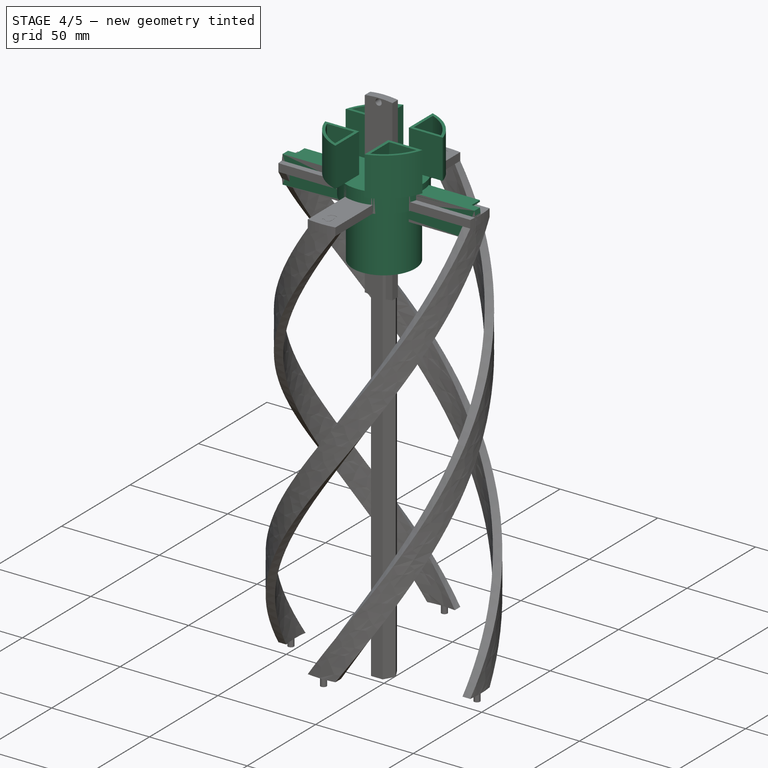
[diagram: stage 4 of 5 — iso view after this stage's code; geometry added in this stage tinted green]
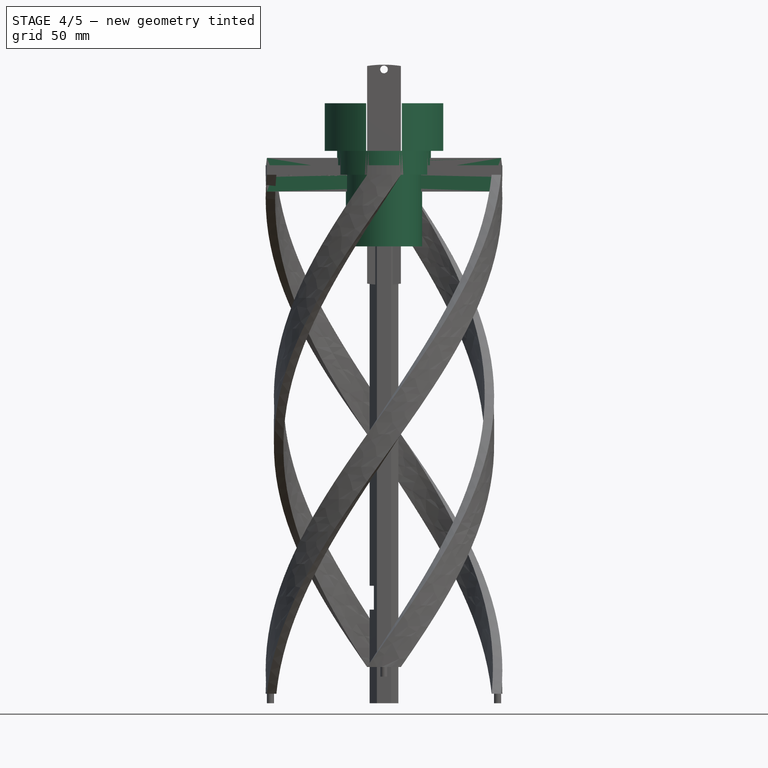
[diagram: stage 4 of 5 — front view after this stage's code; geometry added in this stage tinted green]
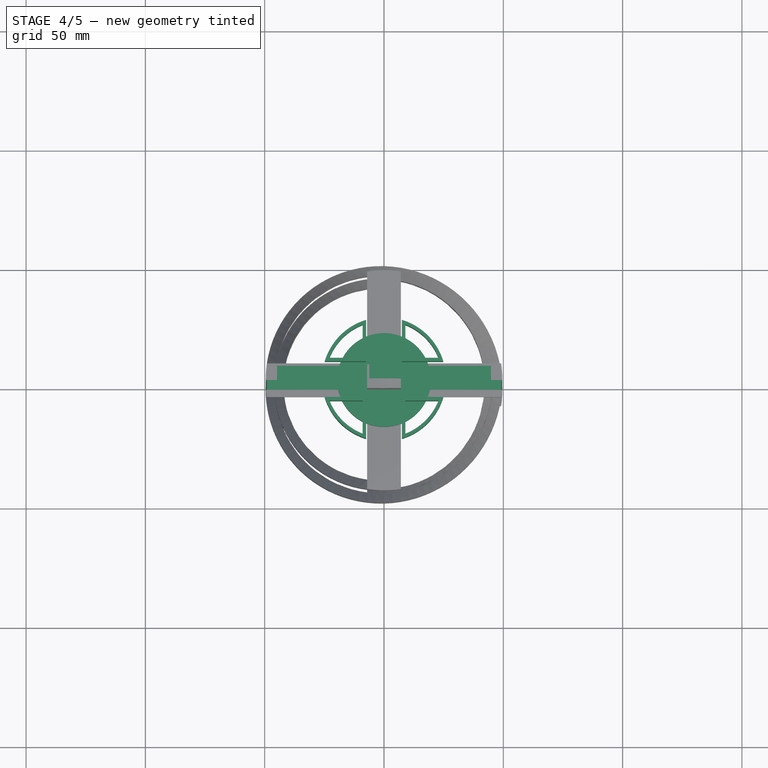
[diagram: stage 4 of 5 — top view after this stage's code; geometry added in this stage tinted green]
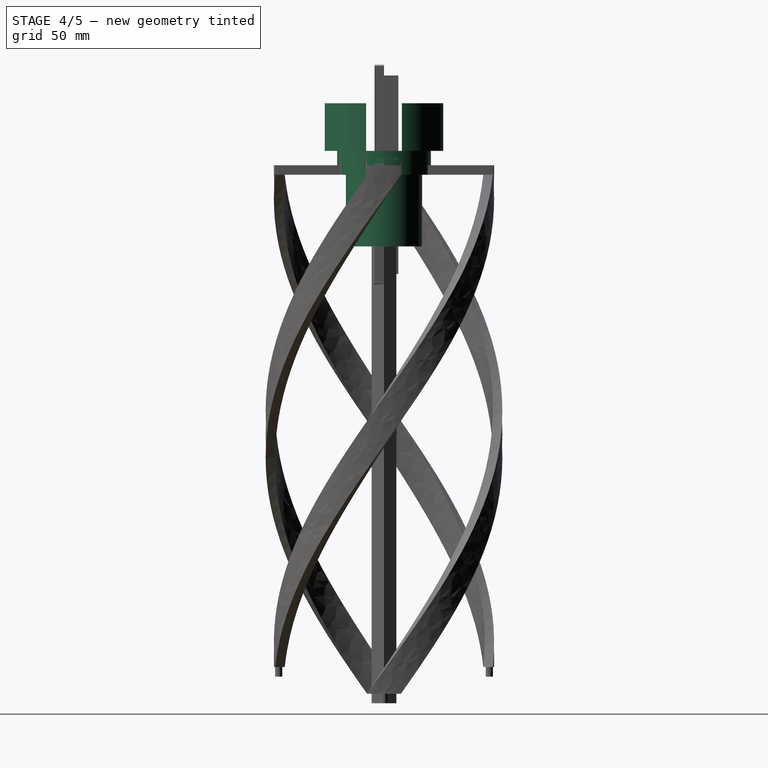
[diagram: stage 4 of 5 — right view after this stage's code; geometry added in this stage tinted green]
FEATURE [Spreadsheet::Sheet] Spreadsheet  label="NumbersForRight"
  cells = B1='Info; C1='https://jcoppens.com/ant/qfh/calc.en.php; A2='#turns; B2(turns)=0.5; A3='H1; B3(H1Large)=225.5; C3='@435; A4='D1; B4(D1Large)=99.2; A5='H2; B5(H2Small)=214.3; A6='D2; B6(D2Small)=92.3; A7='margin; B7(margin)=0.2; A8='widthFoil; B8(widthFoil)=10; A9='helixThickness; B9(helixThickness)=4; A10='heightSmall; B10(heightSmall)==H1Large - H2Small - helixThickness; C10='Padding to hold small helix between large; A11='radiusCenter; B11(radiusCenter)=6; A12='direction; B12(direction)=0; B13='Calculated; C13='Do not change
FEATURE [Sketcher::SketchObject] Sketch003
  FullyConstrained = true
  MapMode = 5
  Placement = pos=(0,0,0) rot=(1,0,0;1.5708rad)
  Support = -> [XZ_Plane002]
  expr: Constraints[1] = Spreadsheet.widthFoil * sqrt(2)
  expr: Constraints[28] = Spreadsheet.radiusCenter + Spreadsheet.margin
  expr: Constraints[34] = Spreadsheet.helixThickness - 1 + Spreadsheet.margin
  expr: Constraints[36] = Spreadsheet.D1Large - Spreadsheet.helixThickness
  expr: Constraints[8] = Spreadsheet.D1Large
  sketch-geometry (13):
    g0: LineSegment StartX=-49.0934 StartY=7.07107 StartZ=0 EndX=49.0934 EndY=7.07107 EndZ=0
    g1: LineSegment StartX=-49.0934 StartY=-7.07107 StartZ=0 EndX=49.0934 EndY=-7.07107 EndZ=0
    g2: ArcOfCircle CenterX=0 CenterY=1.1e-15 CenterZ=0 NormalX=0 NormalY=0 NormalZ=1 AngleXU=0 Radius=49.6 StartAngle=2.99854 EndAngle=3.28464
    g3: ArcOfCircle CenterX=0 CenterY=0 CenterZ=0 NormalX=0 NormalY=0 NormalZ=1 AngleXU=0 Radius=49.6 StartAngle=6.14014 EndAngle=6.42623
    g4: LineSegment StartX=6.2 StartY=0 StartZ=0 EndX=3.1 EndY=5.36936 EndZ=0
    g5: LineSegment StartX=3.1 StartY=5.36936 StartZ=0 EndX=-3.1 EndY=5.36936 EndZ=0
    g6: LineSegment StartX=-3.1 StartY=5.36936 StartZ=0 EndX=-6.2 EndY=2.9e-15 EndZ=0
    g7: LineSegment StartX=-6.2 StartY=2.4e-15 StartZ=0 EndX=-3.1 EndY=-5.36936 EndZ=0
    g8: LineSegment StartX=-3.1 StartY=-5.36936 StartZ=0 EndX=3.1 EndY=-5.36936 EndZ=0
    g9: LineSegment StartX=3.1 StartY=-5.36936 StartZ=0 EndX=6.2 EndY=0 EndZ=0
    g10: Circle CenterX=0 CenterY=1.1e-15 CenterZ=0 NormalX=0 NormalY=0 NormalZ=1 AngleXU=0 Radius=6.2
    g11: Circle CenterX=47.6 CenterY=0 CenterZ=0 NormalX=0 NormalY=0 NormalZ=1 AngleXU=0 Radius=1.6
    g12: Circle CenterX=-47.6 CenterY=0 CenterZ=0 NormalX=0 NormalY=0 NormalZ=1 AngleXU=0 Radius=1.6
  constraints (33):
    c: Horizontal(g0)
    c: DistanceY(g1,g0) = 14.1421
    c: Symmetric(g0,g1,g-1)
    c: Coincident(g2,g0)
    c: Coincident(g3,g0)
    c: Coincident(g3,g1)
    c: Coincident(g1,g2)
    c: Symmetric(g1,g1,g-2)
    c: Distance(g0,g1) = 99.2
    c: Coincident(g4,g5)
    c: Coincident(g5,g6)
    c: Coincident(g6,g7)
    c: Coincident(g7,g8)
    c: Coincident(g8,g9)
    c: Coincident(g9,g4)
    c: Equal(g4, g5-g9) x5
    c: PointOnObject(g4,g10)
    c: PointOnObject(g5,g10)
    c: PointOnObject(g6,g10)
    c: PointOnObject(g7,g10)
    c: PointOnObject(g8,g10)
    c: PointOnObject(g9,g10)
    c: Coincident(g10,g2)
    c: PointOnObject(g9,g-1)
    c: Radius(g10) = 6.2
    c: Coincident(g3,g-1)
    c: Coincident(g2,g3)
    c: PointOnObject(g2,g-2)
    c: PointOnObject(g11,g-1)
    c: Symmetric(g12,g11,g-2)
    c: Diameter(g11) = 3.2
    c: Equal(g11,g12)
    c: DistanceX(g12,g11) = 95.2
FEATURE [PartDesign::Pad] Pad003
  Direction = (0,-1,-2e-16)
  Length = 4
  Length2 = 10
  Placement = pos=(0,0,0) rot=(1,0,0;1.5708rad)
  Profile = -> Sketch003
  ReferenceAxis = -> Sketch003 [N_Axis]
  Type = 0
  expr: Length = Spreadsheet.helixThickness
FEATURE [PartDesign::CoordinateSystem] LCS_1
  AttacherType = Attacher::AttachEngine3D
FEATURE [Sketcher::SketchObject] Sketch015
  FullyConstrained = true
  MapMode = 5
  Support = -> [XY_Plane008]
  sketch-geometry (1):
    g0: Circle CenterX=0 CenterY=0 CenterZ=0 NormalX=0 NormalY=0 NormalZ=1 AngleXU=0 Radius=19.65
  constraints (2):
    c: Radius(g0) = 19.65
    c: Coincident(g0,g-1)
FEATURE [PartDesign::Pad] Pad010
  Direction = (0,0,1)
  Length = 10
  Length2 = 10
  Profile = -> Sketch015
  ReferenceAxis = -> Sketch015 [N_Axis]
  Type = 0
FEATURE [Sketcher::SketchObject] Sketch014
  FullyConstrained = true
  MapMode = 5
  Placement = pos=(0,0,10) rot=(0,0,1;0rad)
  Support = -> [Pad010]
  expr: Constraints[11] = Spreadsheet.widthFoil * sqrt(2) + 4 * Spreadsheet.margin
  expr: Constraints[1] = Spreadsheet.D2Small / 2 - 2 * Spreadsheet.widthFoil - Spreadsheet.margin
  expr: Constraints[24] = Spreadsheet.widthFoil * sqrt(2) + 4 * Spreadsheet.margin
  sketch-geometry (11):
    g0: Circle CenterX=0 CenterY=0 CenterZ=0 NormalX=0 NormalY=0 NormalZ=1 AngleXU=0 Radius=25.95
    g1: LineSegment StartX=-7.47107 StartY=24.8513 StartZ=0 EndX=-7.47107 EndY=-24.8513 EndZ=0
    g2: LineSegment StartX=7.47107 StartY=24.8513 StartZ=0 EndX=7.47107 EndY=-24.8513 EndZ=0
    g3: LineSegment StartX=-24.8513 StartY=7.47107 StartZ=0 EndX=24.8513 EndY=7.47107 EndZ=0
    g4: LineSegment StartX=-24.8513 StartY=-7.47107 StartZ=0 EndX=24.8513 EndY=-7.47107 EndZ=0
    g5: ArcOfCircle CenterX=0 CenterY=0 CenterZ=0 NormalX=0 NormalY=0 NormalZ=1 AngleXU=0 Radius=25.95 StartAngle=0.292036 EndAngle=1.27876
    g6: LineSegment StartX=7.47107 StartY=24.8513 StartZ=0 EndX=7.47107 EndY=7.47107 EndZ=0
    g7: LineSegment StartX=7.47107 StartY=7.47107 StartZ=0 EndX=24.8513 EndY=7.47107 EndZ=0
    g8: ArcOfCircle CenterX=0 CenterY=0 CenterZ=0 NormalX=0 NormalY=0 NormalZ=1 AngleXU=0 Radius=24.5491 StartAngle=0.374098 EndAngle=1.1967
    g9: LineSegment StartX=8.97107 StartY=22.8513 StartZ=0 EndX=8.97107 EndY=8.97107 EndZ=0
    g10: LineSegment StartX=8.97107 StartY=8.97107 StartZ=0 EndX=22.8513 EndY=8.97107 EndZ=0
  constraints (34):
    c: Coincident(g0,g-1)
    c: Radius(g0) = 25.95
    c: PointOnObject(g1,g0)
    c: Vertical(g1)
    c: PointOnObject(g2,g0)
    c: Vertical(g2)
    c: PointOnObject(g3,g0)
    c: Horizontal(g3)
    c: PointOnObject(g4,g0)
    c: PointOnObject(g4,g0)
    c: Horizontal(g4)
    c: DistanceX(g1,g2) = 14.9421
    c: Symmetric(g1,g2,g-2)
    c: Symmetric(g3,g4,g-1)
    c: PointOnObject(g1,g0)
    c: PointOnObject(g2,g0)
    c: Coincident(g5,g0)
    c: Coincident(g5,g2)
    c: Coincident(g5,g3)
    c: Coincident(g6,g5)
    c: Vertical(g6)
    c: PointOnObject(g6,g3)
    c: Coincident(g7,g6)
    c: Coincident(g7,g5)
    c: DistanceY(g4,g3) = 14.9421
    c: Coincident(g8,g5)
    c: Coincident(g8,g9)
    c: Coincident(g9,g10)
    c: Coincident(g10,g8)
    c: Horizontal(g10)
    c: Vertical(g9)
    c: DistanceY(g6,g9) = 1.5
    c: DistanceX(g6,g9) = 1.5
    c: DistanceY(g8,g5) = 2
FEATURE [PartDesign::Pad] Pad011
  BaseFeature = -> Pad010
  Direction = (0,0,1)
  Length = 20
  Length2 = 10
  Profile = -> Sketch014
  ReferenceAxis = -> Sketch014 [N_Axis]
  Type = 0
  expr: Length = Spreadsheet.helixThickness * 5
FEATURE [PartDesign::PolarPattern] PolarPattern
  Angle = 360
  Axis = -> Sketch014 [N_Axis]
  BaseFeature = -> Pad011
  Occurrences = 4
  Originals = -> [Pad011]
FEATURE [Sketcher::SketchObject] Sketch017
  FullyConstrained = true
  MapMode = 5
  Placement = pos=(0,0,0) rot=(1,0,0;3.14159rad)
  Support = -> [PolarPattern]
  sketch-geometry (2):
    g0: Circle CenterX=0 CenterY=0 CenterZ=0 NormalX=0 NormalY=0 NormalZ=1 AngleXU=0 Radius=14
    g1: Circle CenterX=0 CenterY=0 CenterZ=0 NormalX=0 NormalY=0 NormalZ=1 AngleXU=0 Radius=16
  constraints (4):
    c: Coincident(g0,g-1)
    c: Coincident(g1,g0)
    c: Radius(g0) = 14
    c: Radius(g1) = 16
FEATURE [PartDesign::Fillet] Fillet
  Base = -> PolarPattern
  BaseFeature = -> PolarPattern
  Radius = 1
  SupportTransform = false
  UseAllEdges = false
FEATURE [PartDesign::Body] Body010  label="Insert"
  Group = -> [Sketch018,Pad013,Sketch019,Pocket002,Sketch020,Pad014,Sketch021,Pocket003]
  Origin = -> Origin010
  Placement = pos=(-6e-15,-199.6,0) rot=(-0.998099,-0.043578,-0.043578;1.5727rad)
  Tip = -> Pocket003
FEATURE [PartDesign::CoordinateSystem] LCS_7
  AttacherType = Attacher::AttachEngine3D
FEATURE [Sketcher::SketchObject] Sketch005
  FullyConstrained = true
  MapMode = 5
  Placement = pos=(0,0,0) rot=(1,0,0;1.5708rad)
  Support = -> [XZ_Plane006]
  expr: Constraints[29] = Spreadsheet.margin + 6
  expr: Constraints[30] = Spreadsheet.D2Small
  expr: Constraints[35] = Spreadsheet.helixThickness - 1 + Spreadsheet.margin
  expr: Constraints[36] = Spreadsheet.D2Small - Spreadsheet.helixThickness
  expr: Constraints[8] = Spreadsheet.widthFoil * sqrt(2)
  sketch-geometry (13):
    g0: LineSegment StartX=-7.07107 StartY=45.6051 StartZ=0 EndX=-7.07107 EndY=-45.6051 EndZ=0
    g1: LineSegment StartX=7.07107 StartY=45.6051 StartZ=0 EndX=7.07107 EndY=-45.6051 EndZ=0
    g2: ArcOfCircle CenterX=-1.4538e-12 CenterY=0 CenterZ=0 NormalX=0 NormalY=0 NormalZ=1 AngleXU=0 Radius=46.15 StartAngle=1.41697 EndAngle=1.72462
    g3: ArcOfCircle CenterX=-1.4538e-12 CenterY=0 CenterZ=0 NormalX=0 NormalY=0 NormalZ=1 AngleXU=0 Radius=46.15 StartAngle=4.55856 EndAngle=4.86621
    g4: LineSegment StartX=3.1 StartY=-5.36936 StartZ=0 EndX=6.2 EndY=2.8e-15 EndZ=0
    g5: LineSegment StartX=6.2 StartY=2.9e-15 StartZ=0 EndX=3.1 EndY=5.36936 EndZ=0
    g6: LineSegment StartX=3.1 StartY=5.36936 StartZ=0 EndX=-3.1 EndY=5.36936 EndZ=0
    g7: LineSegment StartX=-3.1 StartY=5.36936 StartZ=0 EndX=-6.2 EndY=-1.1e-15 EndZ=0
    g8: LineSegment StartX=-6.2 StartY=-7e-16 StartZ=0 EndX=-3.1 EndY=-5.36936 EndZ=0
    g9: LineSegment StartX=-3.1 StartY=-5.36936 StartZ=0 EndX=3.1 EndY=-5.36936 EndZ=0
    g10: Circle CenterX=-1.4538e-12 CenterY=0 CenterZ=0 NormalX=0 NormalY=0 NormalZ=1 AngleXU=0 Radius=6.2
    g11: Circle CenterX=0 CenterY=44.15 CenterZ=0 NormalX=0 NormalY=0 NormalZ=1 AngleXU=0 Radius=1.6
    g12: Circle CenterX=0 CenterY=-44.15 CenterZ=0 NormalX=0 NormalY=0 NormalZ=1 AngleXU=0 Radius=1.6
  constraints (33):
    c: Vertical(g0)
    c: Symmetric(g1,g0,g-2)
    c: Coincident(g2,g0)
    c: Coincident(g2,g1)
    c: Coincident(g3,g2)
    c: Coincident(g3,g0)
    c: Coincident(g3,g1)
    c: Coincident(g2,g-1)
    c: DistanceX(g0,g1) = 14.1421
    c: Symmetric(g1,g1,g-1)
    c: Coincident(g4,g5)
    c: Coincident(g5,g6)
    c: Coincident(g6,g7)
    c: Coincident(g7,g8)
    c: Coincident(g8,g9)
    c: Coincident(g9,g4)
    c: Equal(g4, g5-g9) x5
    c: PointOnObject(g4,g10)
    c: PointOnObject(g5,g10)
    c: PointOnObject(g6,g10)
    c: PointOnObject(g7,g10)
    c: PointOnObject(g8,g10)
    c: PointOnObject(g9,g10)
    c: Coincident(g10,g2)
    c: Horizontal(g6)
    c: Radius(g10) = 6.2
    c: Distance(g0,g1) = 92.3
    c: PointOnObject(g2,g-1)
    c: PointOnObject(g11,g-2)
    c: Symmetric(g11,g12,g-1)
    c: Equal(g11,g12)
    c: Diameter(g11) = 3.2
    c: DistanceY(g12,g11) = 88.3
FEATURE [PartDesign::Pad] Pad020
  BaseFeature = -> Fillet
  Direction = (0,0,-1)
  Length = 30
  Length2 = 10
  Profile = -> Sketch017
  ReferenceAxis = -> Sketch017 [N_Axis]
  Type = 0
FEATURE [PartDesign::CoordinateSystem] LCS_4
  AttacherType = Attacher::AttachEngine3D
FEATURE [Sketcher::SketchObject] Sketch033
  ExternalGeometry = -> [Sketch003]
  FullyConstrained = false
  MapMode = 5
  Placement = pos=(0,0,0) rot=(-1,0,0;1.5708rad)
  expr: Constraints[10] = Spreadsheet.helixThickness
  expr: Constraints[11] = Spreadsheet.helixThickness
  sketch-geometry (4):
    g0: LineSegment StartX=-44.8408 StartY=-7.07107 StartZ=0 EndX=44.8408 EndY=-7.07107 EndZ=0
    g1: LineSegment StartX=44.8408 StartY=-7.07107 StartZ=0 EndX=44.8408 EndY=-6.23538 EndZ=0
    g2: LineSegment StartX=44.8408 StartY=-6.23538 StartZ=0 EndX=-44.8408 EndY=-6.23538 EndZ=0
    g3: LineSegment StartX=-44.8408 StartY=-6.23538 StartZ=0 EndX=-44.8408 EndY=-7.07107 EndZ=0
  constraints (12):
    c: Coincident(g0,g1)
    c: Coincident(g1,g2)
    c: Coincident(g2,g3)
    c: Coincident(g3,g0)
    c: Horizontal(g0)
    c: Horizontal(g2)
    c: Vertical(g1)
    c: Vertical(g3)
    c: PointOnObject(g0,g-3)
    c: Horizontal(g2,g-4)
    c: DistanceX(g0,g-3) = 4
    c: DistanceX(g-3,g0) = 4
FEATURE [PartDesign::Pad] Pad026
  BaseFeature = -> Pad003
  Direction = (0,1,2e-16)
  Length = 6
  Length2 = 10
  Placement = pos=(0,0,0) rot=(1,0,0;1.5708rad)
  Profile = -> Sketch033
  ReferenceAxis = -> Sketch033 [N_Axis]
  Type = 0
  expr: Length = Spreadsheet.widthFoil - Spreadsheet.helixThickness
FEATURE [Sketcher::SketchObject] Sketch038
  FullyConstrained = false
  MapMode = 5
  Placement = pos=(0,0,0) rot=(1,0,0;3.14159rad)
  expr: Constraints[5] = Spreadsheet.helixThickness
  expr: Constraints[8] = Spreadsheet.widthFoil * sqrt(2)
  expr: Constraints[9] = Spreadsheet.D2Small / 2
  sketch-geometry (4):
    g0: ArcOfCircle CenterX=0 CenterY=0 CenterZ=0 NormalX=0 NormalY=0 NormalZ=1 AngleXU=0 Radius=46.15 StartAngle=1.41708 EndAngle=1.72473
    g1: ArcOfCircle CenterX=0 CenterY=0 CenterZ=0 NormalX=0 NormalY=0 NormalZ=1 AngleXU=0 Radius=42.2018 StartAngle=1.40245 EndAngle=1.73926
    g2: LineSegment StartX=-7.07608 StartY=45.6043 StartZ=0 EndX=-7.07608 EndY=41.6043 EndZ=0
    g3: LineSegment StartX=7.06606 StartY=45.6058 StartZ=0 EndX=7.07112 EndY=41.6051 EndZ=0
  constraints (10):
    c: Coincident(g0,g-1)
    c: Coincident(g1,g0)
    c: Coincident(g2,g0)
    c: Coincident(g2,g1)
    c: Vertical(g2)
    c: DistanceY(g2,g2) = 4
    c: Coincident(g3,g0)
    c: Coincident(g3,g1)
    c: DistanceX(g0,g0) = 14.1421
    c: Distance(g0,g0) = 46.15
FEATURE [Sketcher::SketchObject] Sketch039
  FullyConstrained = true
  MapMode = 5
  Placement = pos=(0,0,0) rot=(1,0,0;3.14159rad)
  expr: Constraints[0] = Spreadsheet.helixThickness
  expr: Constraints[11] = Spreadsheet.D1Large / 2
  expr: Constraints[1] = Spreadsheet.widthFoil * sqrt(2)
  sketch-geometry (4):
    g0: ArcOfCircle CenterX=0 CenterY=0 CenterZ=0 NormalX=0 NormalY=0 NormalZ=1 AngleXU=0 Radius=49.6 StartAngle=2.99854 EndAngle=3.28464
    g1: LineSegment StartX=-49.0934 StartY=7.07107 StartZ=0 EndX=-45.0934 EndY=7.07107 EndZ=0
    g2: LineSegment StartX=-49.0934 StartY=-7.07107 StartZ=0 EndX=-45.0934 EndY=-7.07107 EndZ=0
    g3: ArcOfCircle CenterX=0 CenterY=0 CenterZ=0 NormalX=0 NormalY=0 NormalZ=1 AngleXU=0 Radius=45.6444 StartAngle=2.98605 EndAngle=3.29714
  constraints (13):
    c: DistanceX(g1,g1) = 4
    c: DistanceY(g0,g0) = 14.1421
    c: Horizontal(g0,g2)
    c: Horizontal(g2)
    c: Horizontal(g1)
    c: Coincident(g2,g0)
    c: Coincident(g1,g0)
    c: Equal(g1,g2)
    c: Coincident(g3,g0)
    c: Coincident(g3,g2)
    c: Coincident(g3,g1)
    c: Distance(g0,g-1) = 49.6
    c: Coincident(g0,g-1)
FEATURE [Sketcher::SketchObject] Sketch044
  FullyConstrained = true
  MapMode = 5
  Placement = pos=(0,0,0) rot=(1,0,0;3.14159rad)
  sketch-geometry (14):
    g0: LineSegment StartX=2.5 StartY=4.33013 StartZ=0 EndX=-2.5 EndY=4.33013 EndZ=0
    g1: LineSegment StartX=-2.5 StartY=4.33013 StartZ=0 EndX=-5 EndY=1.1e-15 EndZ=0
    g2: LineSegment StartX=-5 StartY=9e-16 StartZ=0 EndX=-2.5 EndY=-4.33013 EndZ=0
    g3: LineSegment StartX=-2.5 StartY=-4.33013 StartZ=0 EndX=2.5 EndY=-4.33013 EndZ=0
    g4: LineSegment StartX=2.5 StartY=-4.33013 StartZ=0 EndX=5 EndY=2e-16 EndZ=0
    g5: LineSegment StartX=5 StartY=0 StartZ=0 EndX=2.5 EndY=4.33013 EndZ=0
    g6: Circle CenterX=0 CenterY=0 CenterZ=0 NormalX=0 NormalY=0 NormalZ=1 AngleXU=0 Radius=5
    g7: LineSegment StartX=3 StartY=5.19615 StartZ=0 EndX=-3 EndY=5.19615 EndZ=0
    g8: LineSegment StartX=-3 StartY=5.19615 StartZ=0 EndX=-6 EndY=-2e-16 EndZ=0
    g9: LineSegment StartX=-6 StartY=0 StartZ=0 EndX=-3 EndY=-5.19615 EndZ=0
    g10: LineSegment StartX=-3 StartY=-5.19615 StartZ=0 EndX=3 EndY=-5.19615 EndZ=0
    g11: LineSegment StartX=3 StartY=-5.19615 StartZ=0 EndX=6 EndY=-1.2e-15 EndZ=0
    g12: LineSegment StartX=6 StartY=-9e-16 StartZ=0 EndX=3 EndY=5.19615 EndZ=0
    g13: Circle CenterX=0 CenterY=0 CenterZ=0 NormalX=0 NormalY=0 NormalZ=1 AngleXU=0 Radius=6
  constraints (32):
    c: Coincident(g0,g1)
    c: Coincident(g1,g2)
    c: Coincident(g2,g3)
    c: Coincident(g3,g4)
    c: Coincident(g4,g5)
    c: Coincident(g5,g0)
    c: Equal(g0, g1-g5) x5
    c: PointOnObject(g0,g6)
    c: PointOnObject(g1,g6)
    c: PointOnObject(g2,g6)
    c: PointOnObject(g3,g6)
    c: PointOnObject(g4,g6)
    c: PointOnObject(g5,g6)
    c: Coincident(g6,g-1)
    c: Coincident(g7,g8)
    c: Coincident(g8,g9)
    c: Coincident(g9,g10)
    c: Coincident(g10,g11)
    c: Coincident(g11,g12)
    c: Coincident(g12,g7)
    c: Equal(g7, g8-g12) x5
    c: PointOnObject(g7,g13)
    c: PointOnObject(g8,g13)
    c: PointOnObject(g9,g13)
    c: PointOnObject(g10,g13)
    c: PointOnObject(g11,g13)
    c: PointOnObject(g12,g13)
    c: Radius(g13) = 6
    c: Radius(g6) = 5
    c: Horizontal(g0)
    c: Horizontal(g7)
    c: Coincident(g13,g6)
FEATURE [PartDesign::Pad] Pad033
  BaseFeature = -> Pad026
  Direction = (0,1,2e-16)
  Length = 7.2
  Length2 = 10
  Placement = pos=(0,0,0) rot=(1,0,0;1.5708rad)
  Profile = -> Sketch028
  ReferenceAxis = -> Sketch028 [N_Axis]
  Type = 0
  expr: Length = Spreadsheet.heightSmall
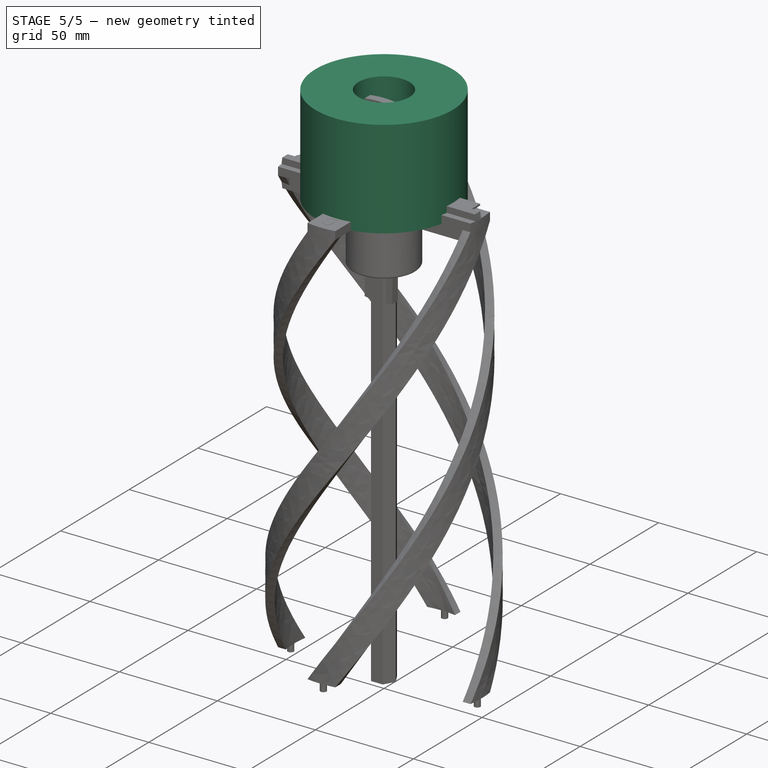
[diagram: stage 5 of 5 — iso view after this stage's code; geometry added in this stage tinted green]
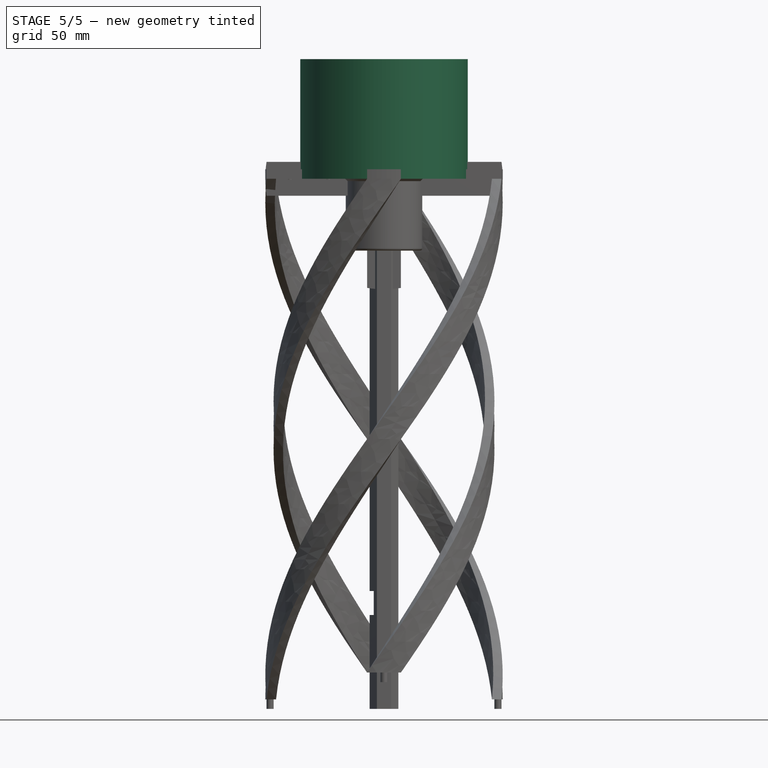
[diagram: stage 5 of 5 — front view after this stage's code; geometry added in this stage tinted green]
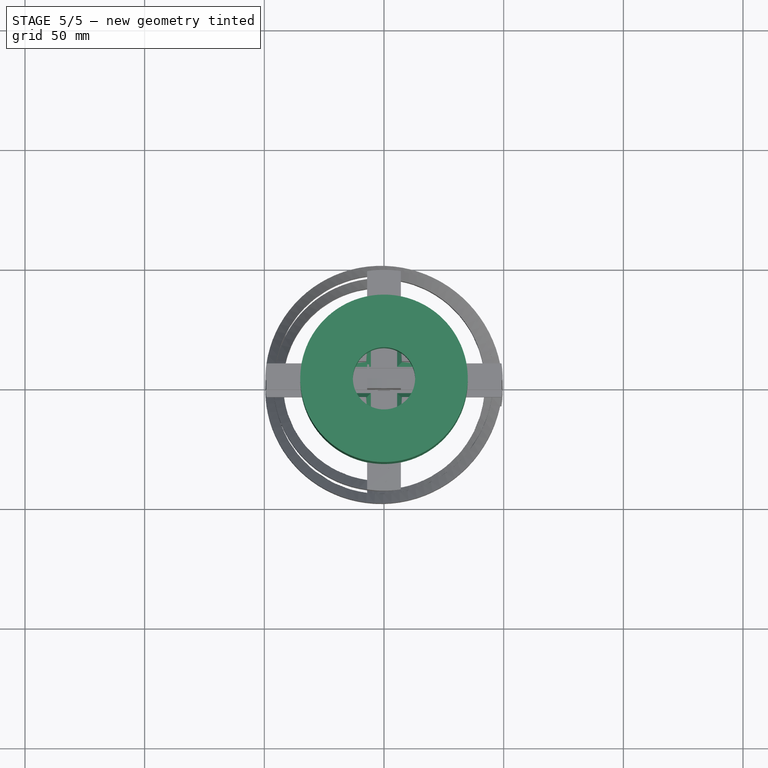
[diagram: stage 5 of 5 — top view after this stage's code; geometry added in this stage tinted green]
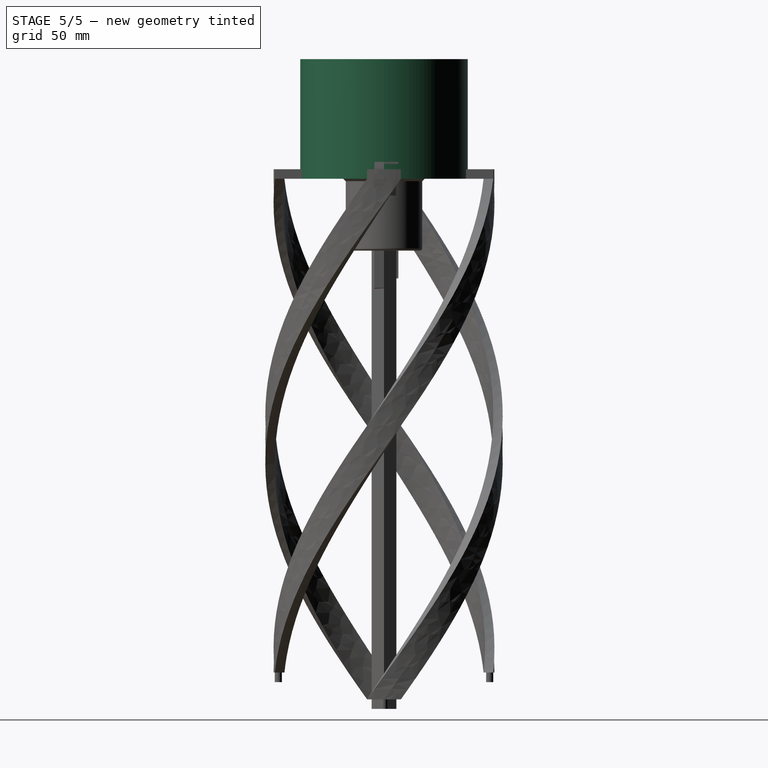
[diagram: stage 5 of 5 — right view after this stage's code; geometry added in this stage tinted green]
FEATURE [Sketcher::SketchObject] Sketch018
  FullyConstrained = true
  MapMode = 5
  Support = -> [XY_Plane010]
  expr: Constraints[1] = <<InsertSheet>>.r4
  sketch-geometry (1):
    g0: Circle CenterX=0 CenterY=0 CenterZ=0 NormalX=0 NormalY=0 NormalZ=1 AngleXU=0 Radius=35
  constraints (2):
    c: Coincident(g0,g-1)
    c: Radius(g0) = 35
FEATURE [Spreadsheet::Sheet] Spreadsheet001  label="InsertSheet"
  cells = A1='r1; B1(r1)=13; A2='r2; B2(r2)=28; A3='r3; B3(r3)==62 / 2; A4='r4; B4(r4)=35; A5='margin; B5(margin)=0.1; A6='height; B6(height)=50
FEATURE [PartDesign::Pad] Pad013
  Direction = (0,0,1)
  Length = 50
  Length2 = 10
  Profile = -> Sketch018
  ReferenceAxis = -> Sketch018 [N_Axis]
  Type = 0
  expr: Length = <<InsertSheet>>.height
FEATURE [Sketcher::SketchObject] Sketch019
  FullyConstrained = true
  MapMode = 5
  Placement = pos=(0,0,0) rot=(1,0,0;3.14159rad)
  Support = -> [Pad013]
  expr: Constraints[1] = <<InsertSheet>>.r3
  sketch-geometry (1):
    g0: Circle CenterX=0 CenterY=0 CenterZ=0 NormalX=0 NormalY=0 NormalZ=1 AngleXU=0 Radius=31
  constraints (2):
    c: Coincident(g0,g-1)
    c: Radius(g0) = 31
FEATURE [PartDesign::Pocket] Pocket002
  BaseFeature = -> Pad013
  Direction = (0,0,1)
  Length = 45
  Length2 = 5
  Profile = -> Sketch019
  ReferenceAxis = -> Sketch019 [N_Axis]
  Type = 0
  expr: Length = <<InsertSheet>>.height - 5
FEATURE [Sketcher::SketchObject] Sketch020
  FullyConstrained = true
  MapMode = 5
  Placement = pos=(0,0,45) rot=(1,0,0;3.14159rad)
  Support = -> [Pocket002]
  expr: Constraints[1] = <<InsertSheet>>.r2
  sketch-geometry (1):
    g0: Circle CenterX=0 CenterY=0 CenterZ=0 NormalX=0 NormalY=0 NormalZ=1 AngleXU=0 Radius=28
  constraints (2):
    c: Coincident(g0,g-1)
    c: Radius(g0) = 28
FEATURE [PartDesign::Pad] Pad014
  BaseFeature = -> Pocket002
  Direction = (0,0,-1)
  Length = 20
  Length2 = 10
  Profile = -> Sketch020
  ReferenceAxis = -> Sketch020 [N_Axis]
  Type = 0
FEATURE [Sketcher::SketchObject] Sketch021
  FullyConstrained = true
  MapMode = 5
  Placement = pos=(0,0,25) rot=(1,0,0;3.14159rad)
  Support = -> [Pad014]
  expr: Constraints[1] = <<InsertSheet>>.r1
  sketch-geometry (1):
    g0: Circle CenterX=0 CenterY=0 CenterZ=0 NormalX=0 NormalY=0 NormalZ=1 AngleXU=0 Radius=13
  constraints (2):
    c: Coincident(g0,g-1)
    c: Radius(g0) = 13
FEATURE [PartDesign::Pocket] Pocket003
  BaseFeature = -> Pad014
  Direction = (0,0,1)
  Length = 5
  Length2 = 5
  Profile = -> Sketch021
  ReferenceAxis = -> Sketch021 [N_Axis]
  Type = 1
FEATURE [PartDesign::Chamfer] Chamfer
  Angle = 45
  Base = -> Pad020 [Edge60]
  BaseFeature = -> Pad020
  ChamferType = 0
  FlipDirection = false
  Size = 1
  Size2 = 1
  SupportTransform = false
  UseAllEdges = false
FEATURE [PartDesign::Fillet] Fillet001
  Base = -> Chamfer [Edge2,Edge24]
  BaseFeature = -> Chamfer
  Radius = 1
  SupportTransform = false
  UseAllEdges = false
FEATURE [PartDesign::Chamfer] Chamfer001
  Angle = 45
  Base = -> Fillet001 [Edge32,Edge30,Edge29,Edge33,Edge28,Edge27,Edge31,Edge34]
  BaseFeature = -> Fillet001
  ChamferType = 0
  FlipDirection = false
  Size = 2
  Size2 = 1
  SupportTransform = false
  UseAllEdges = false
FEATURE [Sketcher::SketchObject] Sketch028
  ExternalGeometry = -> [Sketch003]
  FullyConstrained = true
  MapMode = 5
  Placement = pos=(0,0,0) rot=(-1,0,0;1.5708rad)
  Support = -> [Pad026]
  sketch-geometry (14):
    g0: LineSegment StartX=3.1 StartY=5.36936 StartZ=0 EndX=-3.1 EndY=5.36936 EndZ=0
    g1: LineSegment StartX=-3.1 StartY=5.36936 StartZ=0 EndX=-6.2 EndY=-1.4022e-12 EndZ=0
    g2: LineSegment StartX=-6.2 StartY=-1.4022e-12 StartZ=0 EndX=-3.1 EndY=-5.36936 EndZ=0
    g3: LineSegment StartX=-3.1 StartY=-5.36936 StartZ=0 EndX=3.1 EndY=-5.36936 EndZ=0
    g4: LineSegment StartX=3.1 StartY=-5.36936 StartZ=0 EndX=6.2 EndY=3.757e-13 EndZ=0
    g5: LineSegment StartX=6.2 StartY=3.757e-13 StartZ=0 EndX=3.1 EndY=5.36936 EndZ=0
    g6: Circle CenterX=0 CenterY=0 CenterZ=0 NormalX=0 NormalY=0 NormalZ=1 AngleXU=0 Radius=6.2
    g7: LineSegment StartX=3.6 StartY=6.23538 StartZ=0 EndX=-3.6 EndY=6.23538 EndZ=0
    g8: LineSegment StartX=-3.6 StartY=6.23538 StartZ=0 EndX=-7.2 EndY=-6.457e-13 EndZ=0
    g9: LineSegment StartX=-7.2 StartY=-6.457e-13 StartZ=0 EndX=-3.6 EndY=-6.23538 EndZ=0
    g10: LineSegment StartX=-3.6 StartY=-6.23538 StartZ=0 EndX=3.6 EndY=-6.23538 EndZ=0
    g11: LineSegment StartX=3.6 StartY=-6.23538 StartZ=0 EndX=7.2 EndY=1.66e-13 EndZ=0
    g12: LineSegment StartX=7.2 StartY=1.66e-13 StartZ=0 EndX=3.6 EndY=6.23538 EndZ=0
    g13: Circle CenterX=0 CenterY=0 CenterZ=0 NormalX=0 NormalY=0 NormalZ=1 AngleXU=0 Radius=7.2
  constraints (31):
    c: Coincident(g0,g1)
    c: Coincident(g1,g2)
    c: Coincident(g2,g3)
    c: Coincident(g3,g4)
    c: Coincident(g4,g5)
    c: Coincident(g5,g0)
    c: Equal(g0, g1-g5) x5
    c: PointOnObject(g0,g6)
    c: PointOnObject(g1,g6)
    c: PointOnObject(g2,g6)
    c: PointOnObject(g3,g6)
    c: PointOnObject(g4,g6)
    c: PointOnObject(g5,g6)
    c: Coincident(g6,g-1)
    c: Coincident(g5,g-3)
    c: Coincident(g7,g8)
    c: Coincident(g8,g9)
    c: Coincident(g9,g10)
    c: Coincident(g10,g11)
    c: Coincident(g11,g12)
    c: Coincident(g12,g7)
    c: Equal(g7, g8-g12) x5
    c: PointOnObject(g7,g13)
    c: PointOnObject(g8,g13)
    c: PointOnObject(g9,g13)
    c: PointOnObject(g10,g13)
    c: PointOnObject(g11,g13)
    c: PointOnObject(g12,g13)
    c: Coincident(g13,g6)
    c: Horizontal(g7)
    c: DistanceX(g4,g11) = 1
FEATURE [Sketcher::SketchObject] Sketch036
  ExternalGeometry = -> [Chamfer001]
  FullyConstrained = true
  MapMode = 5
  Placement = pos=(0,0,10) rot=(0,0,1;0rad)
  Support = -> [Chamfer001]
  sketch-geometry (4):
    g0: LineSegment StartX=-19.65 StartY=5 StartZ=0 EndX=19.65 EndY=5 EndZ=0
    g1: LineSegment StartX=19.65 StartY=5 StartZ=0 EndX=19.65 EndY=-5 EndZ=0
    g2: LineSegment StartX=19.65 StartY=-5 StartZ=0 EndX=-19.65 EndY=-5 EndZ=0
    g3: LineSegment StartX=-19.65 StartY=-5 StartZ=0 EndX=-19.65 EndY=5 EndZ=0
  constraints (10):
    c: Coincident(g0,g1)
    c: Coincident(g1,g2)
    c: Coincident(g2,g3)
    c: Coincident(g3,g0)
    c: Horizontal(g0)
    c: Vertical(g1)
    c: Symmetric(g2,g1,g-2)
    c: Vertical(g-3,g1)
    c: DistanceY(g1,g0) = 10
    c: Symmetric(g0,g2,g-1)
FEATURE [PartDesign::Pocket] Pocket004
  BaseFeature = -> Chamfer001
  Direction = (0,0,-1)
  Length = 17
  Length2 = 5
  Profile = -> Sketch036
  ReferenceAxis = -> Sketch036 [N_Axis]
  Type = 0
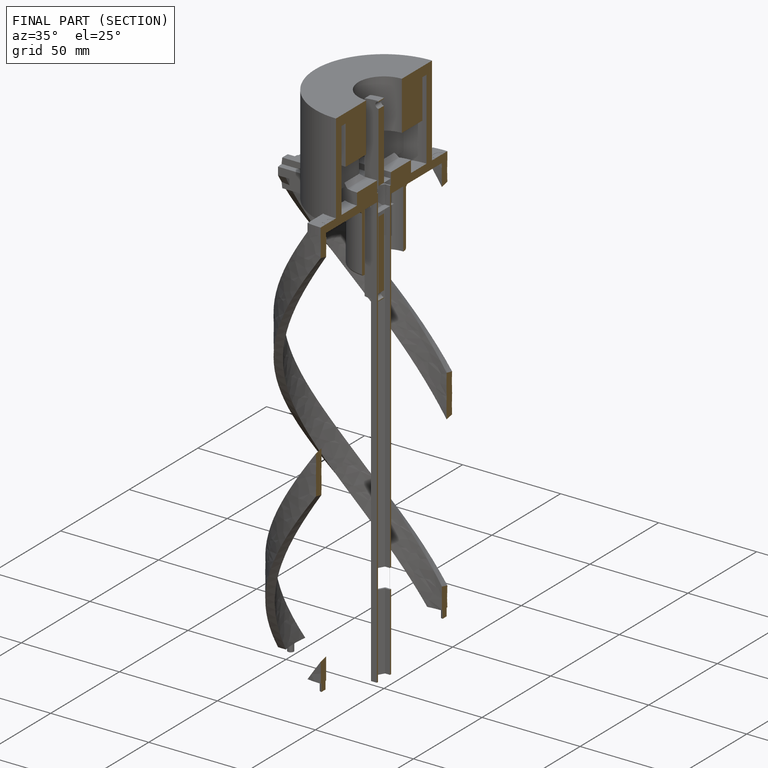
[diagram: finished part — half-section view (interior)]
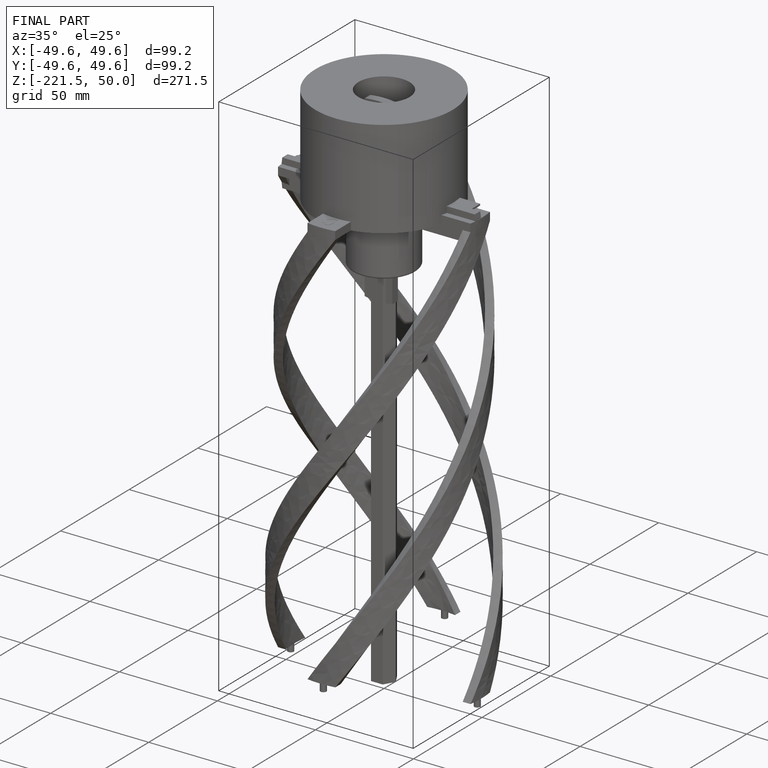
[diagram: finished part — iso view with bounding-box wireframe]
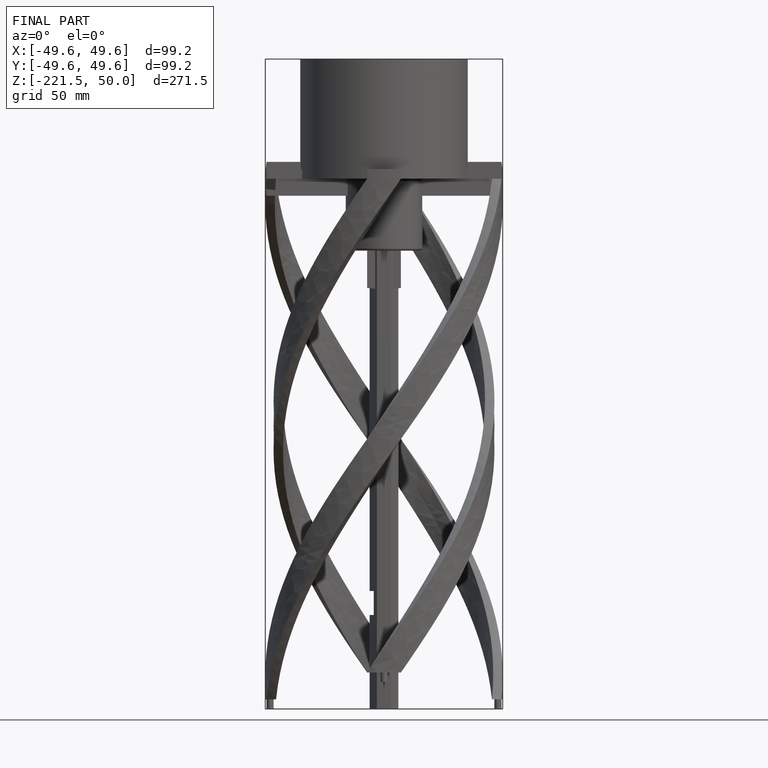
[diagram: finished part — front view with bounding-box wireframe]
